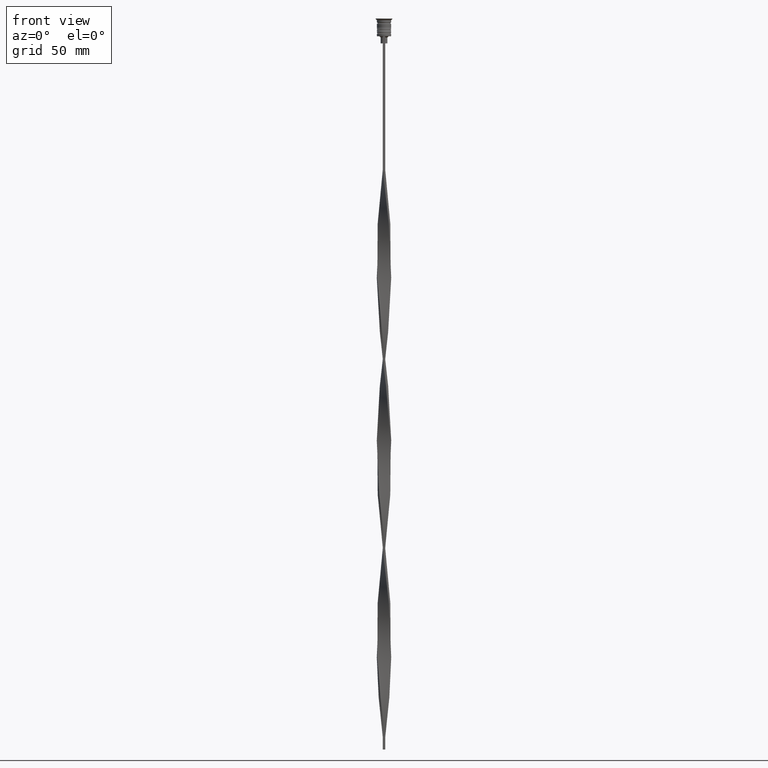
[diagram: clean part render]
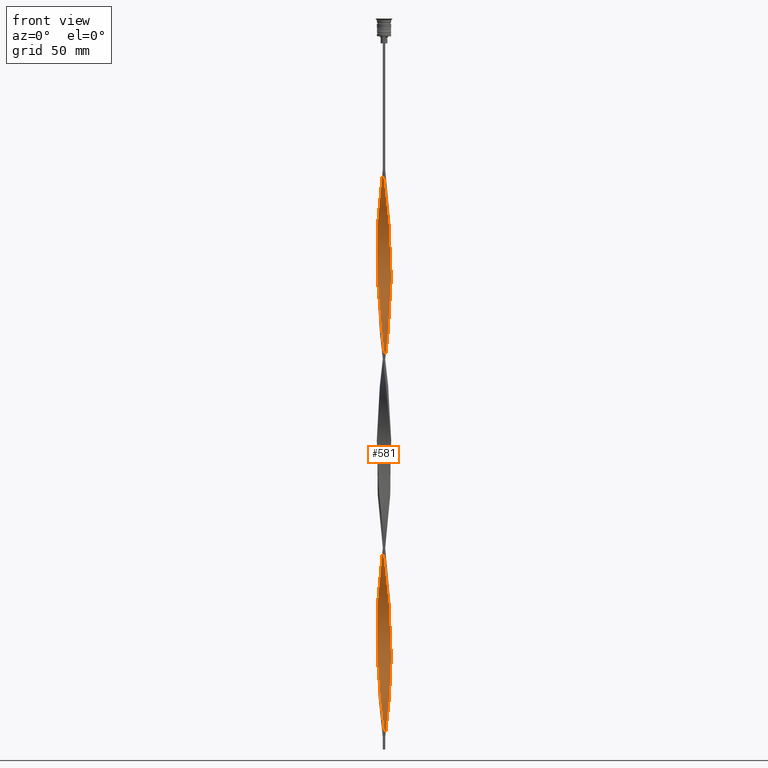
[diagram: same view with one face highlighted and labeled with its STEP entity id]
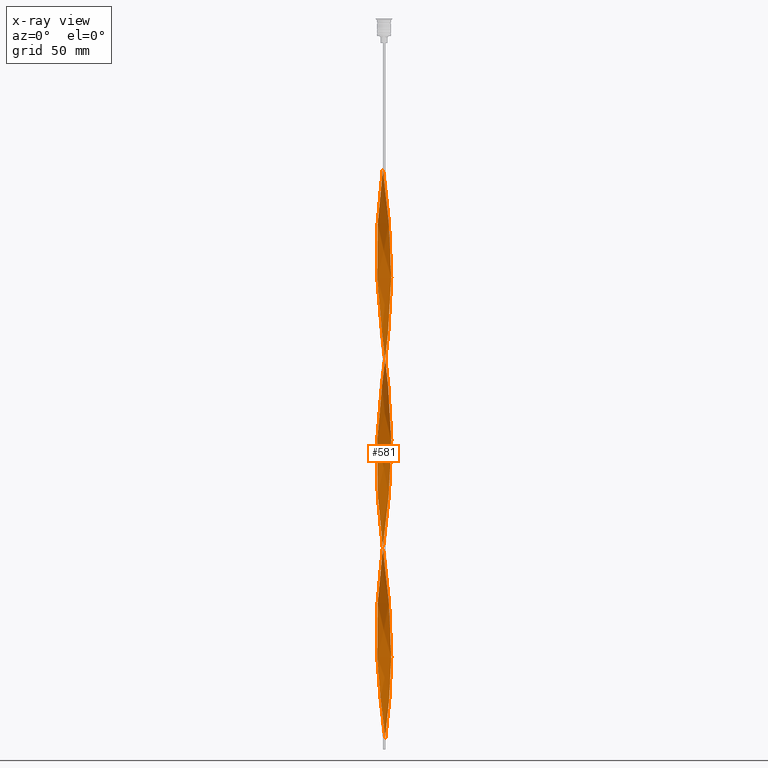
[diagram: x-ray of the same camera — body ghosted, the highlighted face saturated]
A machine part, front view. The second image highlights one B-rep face of the part: STEP entity #581.
The next image is the same camera in x-ray: the body ghosted, the highlighted face saturated — about 0% of this face is hidden behind the body in this view.
In plain terms, the highlighted face is a freeform B-spline surface patch.
Its self-contained STEP definition (entity closure, byte-faithful):
#22 = CARTESIAN_POINT ( 'NONE',  ( -2.588275671453068139, 1.614968472182172432, -173.0416666666666856 ) ) ;
#25 = CARTESIAN_POINT ( 'NONE',  ( -1.962543740019620175, -2.335747457686308426, -280.5916666666666401 ) ) ;
#42 = CARTESIAN_POINT ( 'NONE',  ( -2.972142436947120991, -0.6882321207821395781, -192.9583333333333428 ) ) ;
#45 = CARTESIAN_POINT ( 'NONE',  ( -3.041282254305528454, -0.02454077517687622625, -258.6833333333333940 ) ) ;
#51 = CARTESIAN_POINT ( 'NONE',  ( -1.572990165913118021, -2.614000010619525138, -125.2416666666667027 ) ) ;
#59 = CARTESIAN_POINT ( 'NONE',  ( -1.144704353466773128, 2.827887207922633817, -157.1083333333334053 ) ) ;
#64 = CARTESIAN_POINT ( 'NONE',  ( -1.190190010362667472, 2.809046431942904931, -69.47499999999999432 ) ) ;
#70 = CARTESIAN_POINT ( 'NONE',  ( -2.614000010619525138, 1.572990165913118021, -85.40833333333333144 ) ) ;
#84 = CARTESIAN_POINT ( 'NONE',  ( -2.900014822434877626, -0.9164682371244557979, -194.9500000000000171 ) ) ;
#92 = CARTESIAN_POINT ( 'NONE',  ( 0.9631475654182611867, -2.884847789265297724, -147.1500000000000057 ) ) ;
#97 = CARTESIAN_POINT ( 'NONE',  ( 2.809046431942904931, -1.190190010362667916, -97.35833333333334849 ) ) ;
#102 = CARTESIAN_POINT ( 'NONE',  ( -2.809046431942904931, 1.190190010362667028, -177.0250000000000341 ) ) ;
#110 = CARTESIAN_POINT ( 'NONE',  ( -2.167864254064893359, 2.133158356978606118, -79.43333333333332291 ) ) ;
#116 = CARTESIAN_POINT ( 'NONE',  ( -2.698661051697986757, 1.402579241272419619, -175.0333333333333599 ) ) ;
#124 = CARTESIAN_POINT ( 'NONE',  ( -2.446024322695330433, -1.807474761312824363, -115.2833333333333314 ) ) ;
#129 = VECTOR ( 'NONE', #441, 1000.000000000000000 ) ;
#136 = CARTESIAN_POINT ( 'NONE',  ( -2.972142436947120991, -0.6882321207821395781, -192.9583333333333428 ) ) ;
#143 = EDGE_LOOP ( 'NONE', ( #876, #1626, #1154, #186 ) ) ;
#145 = CARTESIAN_POINT ( 'NONE',  ( 3.043213655198747869, -0.2148133291723912652, -177.0250000000000341 ) ) ;
#147 = CARTESIAN_POINT ( 'NONE',  ( -0.6882321207821390230, -2.972142436947121436, -133.2083333333333144 ) ) ;
#158 = CARTESIAN_POINT ( 'NONE',  ( 2.972142436947121436, 0.6882321207821385789, -113.2916666666666998 ) ) ;
#164 = CARTESIAN_POINT ( 'NONE',  ( -0.7361051204738553455, 2.960649146587690517, -224.8250000000000171 ) ) ;
#167 = CARTESIAN_POINT ( 'NONE',  ( 3.007678046072934208, -0.4515227249772658102, -175.0333333333333599 ) ) ;
#178 = CARTESIAN_POINT ( 'NONE',  ( -2.588275671453068139, 1.614968472182172210, -173.0416666666666856 ) ) ;
#185 = CARTESIAN_POINT ( 'NONE',  ( -2.167864254064893359, 2.133158356978606118, -238.7666666666666799 ) ) ;
#186 = ORIENTED_EDGE ( 'NONE', *, *, #3258, .F. ) ;
#200 = CARTESIAN_POINT ( 'NONE',  ( 3.007678046072934652, 0.4515227249772650886, -270.6333333333333258 ) ) ;
#208 = CARTESIAN_POINT ( 'NONE',  ( -1.807474761312824363, 2.446024322695330433, -234.7833333333333314 ) ) ;
#211 = CARTESIAN_POINT ( 'NONE',  ( -2.900014822434876738, 0.9164682371244563530, -250.7166666666666970 ) ) ;
#221 = CARTESIAN_POINT ( 'NONE',  ( 2.972142436947121436, 0.6882321207821385789, -272.6250000000000568 ) ) ;
#228 = CARTESIAN_POINT ( 'NONE',  ( 2.446024322695330877, 1.807474761312824141, -194.9500000000000171 ) ) ;
#238 = CARTESIAN_POINT ( 'NONE',  ( -1.807474761312824807, -2.446024322695329989, -210.8833333333333258 ) ) ;
#244 = FACE_OUTER_BOUND ( 'NONE', #143, .T. ) ;
#245 = CARTESIAN_POINT ( 'NONE',  ( -2.960649146587690961, -0.7361051204738553455, -264.6583333333333030 ) ) ;
#265 = CARTESIAN_POINT ( 'NONE',  ( 2.335747457686308870, 1.962543740019620175, -125.2416666666667027 ) ) ;
#278 = CARTESIAN_POINT ( 'NONE',  ( 0.4515227249772652551, -3.007678046072934208, -230.8000000000000114 ) ) ;
#283 = CARTESIAN_POINT ( 'NONE',  ( 1.999981050443478958, 2.303772973937591395, -129.2250000000000512 ) ) ;
#285 = CARTESIAN_POINT ( 'NONE',  ( -1.999981050443478514, 2.303772973937591839, -236.7750000000000341 ) ) ;
#293 = EDGE_CURVE ( 'NONE', #1572, #3271, #3181, .T. ) ;
#294 = CARTESIAN_POINT ( 'NONE',  ( 0.4999999999999997780, -3.000000000000000000, -302.5000000000000000 ) ) ;
#316 = CARTESIAN_POINT ( 'NONE',  ( -3.000000000000000000, 0.5000000000000006661, -183.0000000000000000 ) ) ;
#321 = CARTESIAN_POINT ( 'NONE',  ( -2.446024322695330433, -1.807474761312824363, -274.6166666666666742 ) ) ;
#338 = CARTESIAN_POINT ( 'NONE',  ( -0.9631475654182622970, -2.884847789265297280, -218.8500000000000227 ) ) ;
#346 = CARTESIAN_POINT ( 'NONE',  ( 2.720943609271079033, -1.358847259689946130, -167.0666666666666629 ) ) ;
#351 = CARTESIAN_POINT ( 'NONE',  ( -0.2148133291723924865, -3.043213655198747869, -296.5250000000000341 ) ) ;
#355 = CARTESIAN_POINT ( 'NONE',  ( -0.9164682371244557979, 2.900014822434877182, -155.1166666666666742 ) ) ;
#363 = CARTESIAN_POINT ( 'NONE',  ( -1.358847259689946130, -2.720943609271079033, -127.2333333333333343 ) ) ;
#371 = CARTESIAN_POINT ( 'NONE',  ( -3.039350853412309039, 0.2638948795261439328, -184.9916666666666742 ) ) ;
#378 = CARTESIAN_POINT ( 'NONE',  ( 2.335747457686308426, -1.962543740019620842, -161.0916666666666970 ) ) ;
#383 = CARTESIAN_POINT ( 'NONE',  ( -2.698661051697987201, -1.402579241272419175, -111.3000000000000114 ) ) ;
#390 = CARTESIAN_POINT ( 'NONE',  ( 1.572990165913117799, -2.614000010619525138, -81.42500000000001137 ) ) ;
#397 = CARTESIAN_POINT ( 'NONE',  ( -1.767766952966369098, -2.474873734152916338, -123.2500000000000000 ) ) ;
#400 = CARTESIAN_POINT ( 'NONE',  ( 2.167864254064893359, 2.133158356978605230, -286.5666666666667197 ) ) ;
#406 = CARTESIAN_POINT ( 'NONE',  ( -1.999981050443478070, -2.303772973937591395, -208.8916666666667084 ) ) ;
#413 = CARTESIAN_POINT ( 'NONE',  ( -0.7361051204738554565, 2.960649146587690961, -65.49166666666667425 ) ) ;
#415 = CARTESIAN_POINT ( 'NONE',  ( -3.007678046072934208, 0.4515227249772654772, -95.36666666666667425 ) ) ;
#422 = CARTESIAN_POINT ( 'NONE',  ( -1.572990165913117355, 2.614000010619525582, -161.0916666666666970 ) ) ;
#430 = CARTESIAN_POINT ( 'NONE',  ( 1.358847259689946352, 2.720943609271079033, -206.9000000000000057 ) ) ;
#433 = CARTESIAN_POINT ( 'NONE',  ( -2.614000010619525138, 1.572990165913117799, -85.40833333333333144 ) ) ;
#441 = DIRECTION ( 'NONE',  ( 0.000000000000000000, 1.000000000000000000, 0.000000000000000000 ) ) ;
#448 = CARTESIAN_POINT ( 'NONE',  ( 1.614968472182171322, 2.588275671453069027, -133.2083333333333144 ) ) ;
#457 = CARTESIAN_POINT ( 'NONE',  ( -2.884847789265297724, -0.9631475654182615198, -107.3166666666666771 ) ) ;
#467 = CARTESIAN_POINT ( 'NONE',  ( 1.190190010362667916, 2.809046431942904931, -137.1916666666666913 ) ) ;
#473 = CARTESIAN_POINT ( 'NONE',  ( 3.039350853412309483, 0.2638948795261428781, -181.0083333333333258 ) ) ;
#476 = CARTESIAN_POINT ( 'NONE',  ( 0.9164682371244567971, 2.900014822434876738, -210.8833333333333258 ) ) ;
#485 = CARTESIAN_POINT ( 'NONE',  ( -3.000000000000000000, 0.5000000000000006661, -183.0000000000000000 ) ) ;
#490 = CARTESIAN_POINT ( 'NONE',  ( 3.000000000000000000, 0.4999999999999995559, -183.0000000000000000 ) ) ;
#495 = CARTESIAN_POINT ( 'NONE',  ( 2.809046431942905375, 1.190190010362665918, -188.9750000000000227 ) ) ;
#508 = CARTESIAN_POINT ( 'NONE',  ( 1.144704353466773794, -2.827887207922633817, -236.7750000000000341 ) ) ;
#519 = CARTESIAN_POINT ( 'NONE',  ( 0.4515227249772652551, -3.007678046072934208, -71.46666666666666856 ) ) ;
#522 = CARTESIAN_POINT ( 'NONE',  ( -2.698661051697987201, -1.402579241272419175, -270.6333333333333258 ) ) ;
#531 = CARTESIAN_POINT ( 'NONE',  ( 0.6882321207821388009, -2.972142436947121436, -232.7916666666666856 ) ) ;
#536 = CARTESIAN_POINT ( 'NONE',  ( 2.960649146587690517, -0.7361051204738555676, -101.3416666666666686 ) ) ;
#538 = CARTESIAN_POINT ( 'NONE',  ( -2.720943609271079033, 1.358847259689945686, -246.7333333333333201 ) ) ;
#547 = CARTESIAN_POINT ( 'NONE',  ( 2.167864254064893359, 2.133158356978605230, -286.5666666666667197 ) ) ;
#555 = CARTESIAN_POINT ( 'NONE',  ( -3.039350853412309483, -0.2638948795261445990, -260.6750000000000682 ) ) ;
#557 = CARTESIAN_POINT ( 'NONE',  ( 0.2638948795261443769, -3.039350853412309039, -300.5083333333334394 ) ) ;
#577 = CARTESIAN_POINT ( 'NONE',  ( 2.698661051697986757, -1.402579241272419397, -95.36666666666667425 ) ) ;
#581 = ADVANCED_FACE ( 'NONE', ( #244 ), #838, .T. ) ;
#597 = CARTESIAN_POINT ( 'NONE',  ( 1.767766952966369098, -2.474873734152916782, -83.41666666666667140 ) ) ;
#602 = CARTESIAN_POINT ( 'NONE',  ( -3.039350853412309039, -0.2638948795261445990, -260.6750000000000682 ) ) ;
#617 = CARTESIAN_POINT ( 'NONE',  ( 3.041282254305528454, -0.02454077517687655238, -266.6499999999999773 ) ) ;
#620 = CARTESIAN_POINT ( 'NONE',  ( -2.167864254064893359, 2.133158356978606118, -238.7666666666666799 ) ) ;
#638 = CARTESIAN_POINT ( 'NONE',  ( -2.614000010619524250, -1.572990165913118465, -200.9250000000000682 ) ) ;
#650 = CARTESIAN_POINT ( 'NONE',  ( -0.9164682371244565751, -2.900014822434876738, -131.2166666666666686 ) ) ;
#660 = CARTESIAN_POINT ( 'NONE',  ( -2.446024322695329989, 1.807474761312824807, -171.0500000000000114 ) ) ;
#669 = CARTESIAN_POINT ( 'NONE',  ( -2.133158356978606118, -2.167864254064892915, -119.2666666666666799 ) ) ;
#678 = CARTESIAN_POINT ( 'NONE',  ( 2.698661051697986757, -1.402579241272419397, -254.7000000000000455 ) ) ;
#681 = CARTESIAN_POINT ( 'NONE',  ( -3.000000000000000000, -0.4999999999999998890, -103.3333333333333286 ) ) ;
#684 = CARTESIAN_POINT ( 'NONE',  ( -2.960649146587690517, -0.7361051204738552345, -105.3249999999999886 ) ) ;
#689 = CARTESIAN_POINT ( 'NONE',  ( 0.9164682371244560199, -2.900014822434877182, -75.45000000000000284 ) ) ;
#692 = CARTESIAN_POINT ( 'NONE',  ( -2.474873734152917226, -1.767766952966368210, -202.9166666666666572 ) ) ;
#701 = CARTESIAN_POINT ( 'NONE',  ( -1.402579241272419175, 2.698661051697986757, -71.46666666666666856 ) ) ;
#708 = CARTESIAN_POINT ( 'NONE',  ( 2.474873734152916338, -1.767766952966369542, -163.0833333333333712 ) ) ;
#716 = CARTESIAN_POINT ( 'NONE',  ( -3.043213655198748313, -0.2148133291723901273, -188.9750000000000227 ) ) ;
#725 = CARTESIAN_POINT ( 'NONE',  ( -0.2148133291723924865, -3.043213655198747869, -137.1916666666666913 ) ) ;
#729 = CARTESIAN_POINT ( 'NONE',  ( -0.9631475654182616308, 2.884847789265297724, -67.48333333333333428 ) ) ;
#737 = CARTESIAN_POINT ( 'NONE',  ( 2.698661051697986757, -1.402579241272419397, -95.36666666666667425 ) ) ;
#743 = CARTESIAN_POINT ( 'NONE',  ( 2.960649146587690517, 0.7361051204738562337, -184.9916666666666742 ) ) ;
#745 = CARTESIAN_POINT ( 'NONE',  ( 0.2638948795261443769, -3.039350853412309483, -141.1749999999999829 ) ) ;
#754 = CARTESIAN_POINT ( 'NONE',  ( 1.807474761312824807, 2.446024322695329989, -131.2166666666666686 ) ) ;
#761 = CARTESIAN_POINT ( 'NONE',  ( -0.02454077517687562951, 3.041282254305528010, -218.8500000000000227 ) ) ;
#762 = CARTESIAN_POINT ( 'NONE',  ( 1.807474761312824141, -2.446024322695330433, -155.1166666666666742 ) ) ;
#775 = CARTESIAN_POINT ( 'NONE',  ( -1.767766952966368654, 2.474873734152917226, -163.0833333333333712 ) ) ;
#785 = CARTESIAN_POINT ( 'NONE',  ( 2.720943609271079033, -1.358847259689946130, -167.0666666666666629 ) ) ;
#795 = CARTESIAN_POINT ( 'NONE',  ( 0.9631475654182618529, 2.884847789265297280, -139.1833333333333371 ) ) ;
#801 = CARTESIAN_POINT ( 'NONE',  ( 2.900014822434876738, -0.9164682371244567971, -171.0500000000000114 ) ) ;
#812 = CARTESIAN_POINT ( 'NONE',  ( -0.9631475654182622970, -2.884847789265297280, -218.8500000000000227 ) ) ;
#818 = CARTESIAN_POINT ( 'NONE',  ( 2.972142436947120547, -0.6882321207821405773, -173.0416666666666856 ) ) ;
#838 =( BOUNDED_SURFACE ( )  B_SPLINE_SURFACE ( 1, 2, ( 
 ( #3551, #1516, #1438, #3312, #519, #2957, #1744, #1454, #3889, #3948, #597, #2975, #2061, #3597, #2658, #3871, #577, #2353, #3574, #536, #2674, #1804, #3018, #1779, #1762, #3910, #860, #3929, #2077, #2992, #2420, #265, #1478, #283, #1182, #2399, #3616, #1198, #3635, #897, #2119, #1819, #3431, #3352, #1597, #1283, #355, #59, #3114, #2813, #1620, #1247, #2774, #2183, #660, #22, #2219, #102, #2521, #3679, #316, #371, #3413, #2503, #1839, #42, #84, #2445, #1306, #638, #692, #3371, #1865, #3739, #1885, #2758, #1541, #1902, #338, #1267, #3098, #3723, #998, #1578, #1921, #2201, #1560, #956, #3396, #3081, #937, #3133, #2483, #3660, #2792, #3699, #678, #981, #2832, #919, #2136, #2158, #617, #3055, #2464, #3756, #1323, #2539, #1016, #2238, #3456, #1629, #400, #1586, #947, #1935, #1274, #3442, #2547, #1893, #2783 ),
 ( #1650, #3142, #729, #2491, #1610, #3765, #2839, #3122, #110, #969, #2857, #70, #1952, #3689, #1570, #2209, #415, #3729, #2169, #2191, #3384, #684, #990, #3405, #383, #2801, #2474, #2822, #669, #1258, #3161, #51, #363, #1331, #650, #3106, #1295, #2510, #3465, #3422, #1909, #1313, #92, #1877, #2528, #3746, #1007, #3089, #1032, #2227, #708, #2252, #346, #1201, #3372, #1396, #3476, #145, #3215, #473, #490, #743, #1684, #1963, #1717, #3153, #1421, #1644, #2641, #2561, #1700, #3173, #430, #2877, #2579, #2280, #3854, #2934, #761, #1981, #3198, #164, #2598, #3840, #3814, #1082, #208, #285, #620, #1842, #3337, #3913, #1520, #2718, #1545, #2423, #2382, #1249, #45, #602, #2140, #2081, #1186, #1869, #2698, #2737, #321, #3643, #2761, #25, #939, #3932, #2403, #3619, #880, #2161, #3600, #863, #1783, #557, #3000 ) ),
 .UNSPECIFIED., .F., .F., .F. ) 
 B_SPLINE_SURFACE_WITH_KNOTS ( ( 2, 2 ),
 ( 3, 2, 2, 2, 2, 2, 2, 2, 2, 2, 2, 2, 2, 2, 2, 2, 2, 2, 2, 2, 2, 2, 2, 2, 2, 2, 2, 2, 2, 2, 2, 2, 2, 2, 2, 2, 2, 2, 2, 2, 2, 2, 2, 2, 2, 2, 2, 2, 2, 2, 2, 2, 2, 2, 2, 2, 2, 2, 2, 2, 3 ),
 ( 0.000000000000000000, 1.000000000000000000 ),
 ( 0.000000000000000000, 0.01250000000000000069, 0.02500000000000000139, 0.03749999999999999861, 0.05000000000000000278, 0.06250000000000000000, 0.07499999999999999722, 0.08749999999999999445, 0.1000000000000000056, 0.1125000000000000028, 0.1250000000000000000, 0.1375000000000000111, 0.1499999999999999944, 0.1625000000000000056, 0.1749999999999999889, 0.1875000000000000000, 0.2000000000000000111, 0.2124999999999999944, 0.2250000000000000056, 0.2374999999999999889, 0.2500000000000000000, 0.2625000000000000111, 0.2750000000000000222, 0.2874999999999999778, 0.2999999999999999889, 0.3125000000000000000, 0.3250000000000000111, 0.3375000000000000222, 0.3499999999999999778, 0.3624999999999999889, 0.3750000000000000000, 0.3875000000000000111, 0.4000000000000000222, 0.4124999999999999778, 0.4249999999999999889, 0.4375000000000000000, 0.4500000000000000111, 0.4625000000000000222, 0.4749999999999999778, 0.4874999999999999889, 0.5000000000000000000, 0.5124999999999999556, 0.5250000000000000222, 0.5374999999999999778, 0.5500000000000000444, 0.5625000000000000000, 0.5749999999999999556, 0.5875000000000000222, 0.5999999999999999778, 0.6125000000000000444, 0.6250000000000000000, 0.6374999999999999556, 0.6500000000000000222, 0.6624999999999999778, 0.6750000000000000444, 0.6875000000000000000, 0.6999999999999999556, 0.7125000000000000222, 0.7249999999999999778, 0.7375000000000000444, 0.7500000000000000000 ),
 .UNSPECIFIED. ) 
 GEOMETRIC_REPRESENTATION_ITEM ( )  RATIONAL_B_SPLINE_SURFACE ( (
 ( 1.000000000000000000, 0.9969173337331279638, 1.000000000000000000, 0.9969173337331279638, 1.000000000000000000, 0.9969173337331279638, 1.000000000000000000, 0.9969173337331279638, 1.000000000000000000, 0.9969173337331279638, 1.000000000000000000, 0.9969173337331279638, 1.000000000000000000, 0.9969173337331279638, 1.000000000000000000, 0.9969173337331279638, 1.000000000000000000, 0.9969173337331279638, 1.000000000000000000, 0.9969173337331279638, 1.000000000000000000, 0.9969173337331279638, 1.000000000000000000, 0.9969173337331279638, 1.000000000000000000, 0.9969173337331279638, 1.000000000000000000, 0.9969173337331279638, 1.000000000000000000, 0.9969173337331279638, 1.000000000000000000, 0.9969173337331279638, 1.000000000000000000, 0.9969173337331279638, 1.000000000000000000, 0.9969173337331279638, 1.000000000000000000, 0.9969173337331279638, 1.000000000000000000, 0.9969173337331279638, 1.000000000000000000, 0.9969173337331279638, 1.000000000000000000, 0.9969173337331279638, 1.000000000000000000, 0.9969173337331279638, 1.000000000000000000, 0.9969173337331279638, 1.000000000000000000, 0.9969173337331279638, 1.000000000000000000, 0.9969173337331279638, 1.000000000000000000, 0.9969173337331279638, 1.000000000000000000, 0.9969173337331279638, 1.000000000000000000, 0.9969173337331279638, 1.000000000000000000, 0.9969173337331279638, 1.000000000000000000, 0.9969173337331279638, 1.000000000000000000, 0.9969173337331279638, 1.000000000000000000, 0.9969173337331279638, 1.000000000000000000, 0.9969173337331279638, 1.000000000000000000, 0.9969173337331279638, 1.000000000000000000, 0.9969173337331279638, 1.000000000000000000, 0.9969173337331279638, 1.000000000000000000, 0.9969173337331279638, 1.000000000000000000, 0.9969173337331279638, 1.000000000000000000, 0.9969173337331279638, 1.000000000000000000, 0.9969173337331279638, 1.000000000000000000, 0.9969173337331279638, 1.000000000000000000, 0.9969173337331279638, 1.000000000000000000, 0.9969173337331279638, 1.000000000000000000, 0.9969173337331279638, 1.000000000000000000, 0.9969173337331279638, 1.000000000000000000, 0.9969173337331279638, 1.000000000000000000, 0.9969173337331279638, 1.000000000000000000, 0.9969173337331279638, 1.000000000000000000, 0.9969173337331279638, 1.000000000000000000, 0.9969173337331279638, 1.000000000000000000, 0.9969173337331279638, 1.000000000000000000, 0.9969173337331279638, 1.000000000000000000, 0.9969173337331279638, 1.000000000000000000, 0.9969173337331279638, 1.000000000000000000, 0.9969173337331279638, 1.000000000000000000, 0.9969173337331279638, 1.000000000000000000, 0.9969173337331279638, 1.000000000000000000, 0.9969173337331279638, 1.000000000000000000, 0.9969173337331279638, 1.000000000000000000),
 ( 1.000000000000000000, 0.9969173337331279638, 1.000000000000000000, 0.9969173337331279638, 1.000000000000000000, 0.9969173337331279638, 1.000000000000000000, 0.9969173337331279638, 1.000000000000000000, 0.9969173337331279638, 1.000000000000000000, 0.9969173337331279638, 1.000000000000000000, 0.9969173337331279638, 1.000000000000000000, 0.9969173337331279638, 1.000000000000000000, 0.9969173337331279638, 1.000000000000000000, 0.9969173337331279638, 1.000000000000000000, 0.9969173337331279638, 1.000000000000000000, 0.9969173337331279638, 1.000000000000000000, 0.9969173337331279638, 1.000000000000000000, 0.9969173337331279638, 1.000000000000000000, 0.9969173337331279638, 1.000000000000000000, 0.9969173337331279638, 1.000000000000000000, 0.9969173337331279638, 1.000000000000000000, 0.9969173337331279638, 1.000000000000000000, 0.9969173337331279638, 1.000000000000000000, 0.9969173337331279638, 1.000000000000000000, 0.9969173337331279638, 1.000000000000000000, 0.9969173337331279638, 1.000000000000000000, 0.9969173337331279638, 1.000000000000000000, 0.9969173337331279638, 1.000000000000000000, 0.9969173337331279638, 1.000000000000000000, 0.9969173337331279638, 1.000000000000000000, 0.9969173337331279638, 1.000000000000000000, 0.9969173337331279638, 1.000000000000000000, 0.9969173337331279638, 1.000000000000000000, 0.9969173337331279638, 1.000000000000000000, 0.9969173337331279638, 1.000000000000000000, 0.9969173337331279638, 1.000000000000000000, 0.9969173337331279638, 1.000000000000000000, 0.9969173337331279638, 1.000000000000000000, 0.9969173337331279638, 1.000000000000000000, 0.9969173337331279638, 1.000000000000000000, 0.9969173337331279638, 1.000000000000000000, 0.9969173337331279638, 1.000000000000000000, 0.9969173337331279638, 1.000000000000000000, 0.9969173337331279638, 1.000000000000000000, 0.9969173337331279638, 1.000000000000000000, 0.9969173337331279638, 1.000000000000000000, 0.9969173337331279638, 1.000000000000000000, 0.9969173337331279638, 1.000000000000000000, 0.9969173337331279638, 1.000000000000000000, 0.9969173337331279638, 1.000000000000000000, 0.9969173337331279638, 1.000000000000000000, 0.9969173337331279638, 1.000000000000000000, 0.9969173337331279638, 1.000000000000000000, 0.9969173337331279638, 1.000000000000000000, 0.9969173337331279638, 1.000000000000000000, 0.9969173337331279638, 1.000000000000000000, 0.9969173337331279638, 1.000000000000000000, 0.9969173337331279638, 1.000000000000000000, 0.9969173337331279638, 1.000000000000000000, 0.9969173337331279638, 1.000000000000000000, 0.9969173337331279638, 1.000000000000000000, 0.9969173337331279638, 1.000000000000000000, 0.9969173337331279638, 1.000000000000000000, 0.9969173337331279638, 1.000000000000000000) ) ) 
 REPRESENTATION_ITEM ( '' )  SURFACE ( )  );
#843 = CARTESIAN_POINT ( 'NONE',  ( -2.614000010619525138, 1.572990165913117799, -244.7416666666667027 ) ) ;
#853 = CARTESIAN_POINT ( 'NONE',  ( 2.698661051697986757, -1.402579241272419397, -254.7000000000000455 ) ) ;
#859 = CARTESIAN_POINT ( 'NONE',  ( 0.5000000000000004441, 3.000000000000000000, -302.5000000000000000 ) ) ;
#860 = CARTESIAN_POINT ( 'NONE',  ( 2.900014822434877182, 0.9164682371244560199, -115.2833333333333314 ) ) ;
#861 = CARTESIAN_POINT ( 'NONE',  ( -2.335747457686308870, 1.962543740019620397, -240.7583333333333826 ) ) ;
#863 = CARTESIAN_POINT ( 'NONE',  ( -0.2148133291723924587, -3.043213655198747869, -296.5250000000000341 ) ) ;
#872 = CARTESIAN_POINT ( 'NONE',  ( 1.999981050443478958, 2.303772973937590951, -288.5583333333333940 ) ) ;
#876 = ORIENTED_EDGE ( 'NONE', *, *, #293, .T. ) ;
#880 = CARTESIAN_POINT ( 'NONE',  ( -0.9164682371244565751, -2.900014822434876738, -290.5499999999999545 ) ) ;
#888 = CARTESIAN_POINT ( 'NONE',  ( 2.827887207922633817, 1.144704353466773794, -276.6083333333333485 ) ) ;
#897 = CARTESIAN_POINT ( 'NONE',  ( 0.7361051204738557896, 2.960649146587690517, -141.1749999999999829 ) ) ;
#919 = CARTESIAN_POINT ( 'NONE',  ( 2.960649146587690517, -0.7361051204738555676, -260.6750000000000682 ) ) ;
#937 = CARTESIAN_POINT ( 'NONE',  ( 1.767766952966369098, -2.474873734152916782, -242.7500000000000284 ) ) ;
#939 = CARTESIAN_POINT ( 'NONE',  ( -1.767766952966369098, -2.474873734152916338, -282.5833333333333712 ) ) ;
#947 = CARTESIAN_POINT ( 'NONE',  ( 1.807474761312824807, 2.446024322695329989, -290.5499999999999545 ) ) ;
#956 = CARTESIAN_POINT ( 'NONE',  ( 1.144704353466773572, -2.827887207922633817, -236.7750000000000341 ) ) ;
#969 = CARTESIAN_POINT ( 'NONE',  ( -2.335747457686308870, 1.962543740019620175, -81.42500000000002558 ) ) ;
#975 = CARTESIAN_POINT ( 'NONE',  ( 0.4515227249772652551, -3.007678046072934208, -71.46666666666666856 ) ) ;
#981 = CARTESIAN_POINT ( 'NONE',  ( 2.809046431942904931, -1.190190010362667916, -256.6916666666666629 ) ) ;
#990 = CARTESIAN_POINT ( 'NONE',  ( -2.884847789265297724, -0.9631475654182615198, -107.3166666666666771 ) ) ;
#998 = CARTESIAN_POINT ( 'NONE',  ( -0.02454077517687638932, -3.041282254305528454, -226.8166666666666629 ) ) ;
#1004 = CARTESIAN_POINT ( 'NONE',  ( -3.039350853412309483, -0.2638948795261445990, -101.3416666666666828 ) ) ;
#1007 = CARTESIAN_POINT ( 'NONE',  ( 1.807474761312824141, -2.446024322695330433, -155.1166666666666742 ) ) ;
#1012 = CARTESIAN_POINT ( 'NONE',  ( 3.039350853412309483, -0.2638948795261449320, -105.3250000000000028 ) ) ;
#1013 = CARTESIAN_POINT ( 'NONE',  ( -0.4515227249772655882, -3.007678046072934208, -294.5333333333333030 ) ) ;
#1016 = CARTESIAN_POINT ( 'NONE',  ( 2.720943609271079033, 1.358847259689945242, -278.6000000000000227 ) ) ;
#1032 = CARTESIAN_POINT ( 'NONE',  ( 2.167864254064892915, -2.133158356978606118, -159.1000000000000227 ) ) ;
#1041 = CARTESIAN_POINT ( 'NONE',  ( -0.6882321207821383569, 2.972142436947121880, -153.1250000000000000 ) ) ;
#1051 = CARTESIAN_POINT ( 'NONE',  ( 0.4999999999999997780, -3.000000000000000000, -143.1666666666666572 ) ) ;
#1059 = CARTESIAN_POINT ( 'NONE',  ( -1.358847259689945242, 2.720943609271079033, -159.1000000000000227 ) ) ;
#1067 = CARTESIAN_POINT ( 'NONE',  ( -2.133158356978606118, -2.167864254064892915, -119.2666666666666799 ) ) ;
#1077 = CARTESIAN_POINT ( 'NONE',  ( -2.720943609271079477, -1.358847259689944798, -198.9333333333333371 ) ) ;
#1082 = CARTESIAN_POINT ( 'NONE',  ( -1.614968472182171100, 2.588275671453069027, -232.7916666666666572 ) ) ;
#1084 = CARTESIAN_POINT ( 'NONE',  ( -0.9631475654182616308, 2.884847789265297724, -226.8166666666666629 ) ) ;
#1100 = CARTESIAN_POINT ( 'NONE',  ( 3.043213655198747869, 0.2148133291723917371, -109.3083333333333371 ) ) ;
#1107 = CARTESIAN_POINT ( 'NONE',  ( -3.043213655198747869, 0.2148133291723922644, -256.6916666666666629 ) ) ;
#1117 = CARTESIAN_POINT ( 'NONE',  ( 2.133158356978606118, -2.167864254064893359, -246.7333333333333201 ) ) ;
#1123 = CARTESIAN_POINT ( 'NONE',  ( -1.767766952966369098, -2.474873734152916338, -282.5833333333333712 ) ) ;
#1133 = CARTESIAN_POINT ( 'NONE',  ( 0.7361051204738559006, 2.960649146587690961, -300.5083333333334394 ) ) ;
#1140 = CARTESIAN_POINT ( 'NONE',  ( 1.572990165913119354, 2.614000010619523806, -204.9083333333333599 ) ) ;
#1153 = CARTESIAN_POINT ( 'NONE',  ( -0.2638948795261447655, -3.039350853412309483, -224.8250000000000171 ) ) ;
#1154 = ORIENTED_EDGE ( 'NONE', *, *, #3143, .F. ) ;
#1165 = CARTESIAN_POINT ( 'NONE',  ( -2.446024322695330433, -1.807474761312824363, -274.6166666666666742 ) ) ;
#1182 = CARTESIAN_POINT ( 'NONE',  ( 1.807474761312824807, 2.446024322695329989, -131.2166666666666686 ) ) ;
#1186 = CARTESIAN_POINT ( 'NONE',  ( -2.884847789265297724, -0.9631475654182615198, -266.6499999999999773 ) ) ;
#1193 = CARTESIAN_POINT ( 'NONE',  ( 3.000000000000000000, -0.5000000000000003331, -262.6666666666667425 ) ) ;
#1198 = CARTESIAN_POINT ( 'NONE',  ( 1.190190010362667916, 2.809046431942904931, -137.1916666666666913 ) ) ;
#1201 = CARTESIAN_POINT ( 'NONE',  ( 2.827887207922633372, -1.144704353466772906, -169.0583333333333655 ) ) ;
#1247 = CARTESIAN_POINT ( 'NONE',  ( -1.962543740019619731, 2.335747457686310202, -165.0749999999999886 ) ) ;
#1249 = CARTESIAN_POINT ( 'NONE',  ( -3.043213655198747869, 0.2148133291723922367, -256.6916666666666629 ) ) ;
#1257 =( BOUNDED_CURVE ( )  B_SPLINE_CURVE ( 2, ( #1302, #3053, #2498, #2215, #975, #3110, #689, #1915, #3128, #390, #2865, #3829, #3752, #2291, #1338, #1391, #737, #97, #2257, #3809, #1636, #1012, #1997, #1100, #1678, #158, #2313, #1975, #2573, #1957, #3529, #2231, #3210, #2890, #754, #448, #3506, #467, #795, #2845, #3166, #1359, #2014, #1695, #1375, #1041, #2908, #3772, #1059, #422, #775, #2593, #3227, #2552, #1656, #178, #116, #3791, #3470, #2613, #485, #2274, #3148, #716, #2829, #136, #3186, #1318, #1077, #3488, #2534, #3450, #1940, #406, #238, #3590, #3266, #3243, #812, #2072, #3285, #1153, #3610, #2090, #278, #531, #2031, #508, #1737, #1492, #3329, #2927, #1117, #3850, #2332, #3883, #853, #3547, #2952, #1450, #1193, #1712, #1756, #2412, #200, #221, #2669, #888, #2373, #2636, #1432, #2652, #547, #872, #3867, #1794, #1774, #1415, #2987, #1133, #2349 ),
 .UNSPECIFIED., .F., .T. ) 
 B_SPLINE_CURVE_WITH_KNOTS ( ( 3, 2, 2, 2, 2, 2, 2, 2, 2, 2, 2, 2, 2, 2, 2, 2, 2, 2, 2, 2, 2, 2, 2, 2, 2, 2, 2, 2, 2, 2, 2, 2, 2, 2, 2, 2, 2, 2, 2, 2, 2, 2, 2, 2, 2, 2, 2, 2, 2, 2, 2, 2, 2, 2, 2, 2, 2, 2, 2, 2, 3 ),
 ( 0.000000000000000000, 0.01250000000000000243, 0.02500000000000000486, 0.03749999999999999861, 0.05000000000000000971, 0.06250000000000000000, 0.07499999999999999722, 0.08749999999999998057, 0.1000000000000000194, 0.1125000000000000028, 0.1250000000000000000, 0.1375000000000000111, 0.1499999999999999944, 0.1625000000000000056, 0.1749999999999999611, 0.1875000000000000000, 0.2000000000000000389, 0.2124999999999999944, 0.2250000000000000056, 0.2374999999999999611, 0.2500000000000000000, 0.2625000000000000111, 0.2750000000000000222, 0.2874999999999999778, 0.2999999999999999889, 0.3125000000000000000, 0.3250000000000000111, 0.3375000000000000777, 0.3499999999999999223, 0.3624999999999999889, 0.3750000000000000000, 0.3875000000000000111, 0.4000000000000000777, 0.4124999999999999223, 0.4249999999999999889, 0.4375000000000000000, 0.4500000000000000111, 0.4625000000000000777, 0.4749999999999999223, 0.4874999999999999889, 0.5000000000000000000, 0.5124999999999999556, 0.5250000000000000222, 0.5374999999999999778, 0.5500000000000000444, 0.5625000000000000000, 0.5749999999999999556, 0.5875000000000000222, 0.5999999999999999778, 0.6125000000000000444, 0.6250000000000000000, 0.6374999999999999556, 0.6500000000000000222, 0.6624999999999999778, 0.6750000000000001554, 0.6875000000000000000, 0.6999999999999998446, 0.7125000000000000222, 0.7249999999999999778, 0.7375000000000001554, 0.7500000000000000000 ),
 .UNSPECIFIED. ) 
 CURVE ( )  GEOMETRIC_REPRESENTATION_ITEM ( )  RATIONAL_B_SPLINE_CURVE ( ( 1.000000000000000000, 0.9969173337331279638, 1.000000000000000000, 0.9969173337331279638, 1.000000000000000000, 0.9969173337331279638, 1.000000000000000000, 0.9969173337331279638, 1.000000000000000000, 0.9969173337331279638, 1.000000000000000000, 0.9969173337331279638, 1.000000000000000000, 0.9969173337331279638, 1.000000000000000000, 0.9969173337331279638, 1.000000000000000000, 0.9969173337331279638, 1.000000000000000000, 0.9969173337331279638, 1.000000000000000000, 0.9969173337331279638, 1.000000000000000000, 0.9969173337331279638, 1.000000000000000000, 0.9969173337331279638, 1.000000000000000000, 0.9969173337331279638, 1.000000000000000000, 0.9969173337331279638, 1.000000000000000000, 0.9969173337331279638, 1.000000000000000000, 0.9969173337331279638, 1.000000000000000000, 0.9969173337331279638, 1.000000000000000000, 0.9969173337331279638, 1.000000000000000000, 0.9969173337331279638, 1.000000000000000000, 0.9969173337331279638, 1.000000000000000000, 0.9969173337331279638, 1.000000000000000000, 0.9969173337331279638, 1.000000000000000000, 0.9969173337331279638, 1.000000000000000000, 0.9969173337331279638, 1.000000000000000000, 0.9969173337331279638, 1.000000000000000000, 0.9969173337331279638, 1.000000000000000000, 0.9969173337331279638, 1.000000000000000000, 0.9969173337331279638, 1.000000000000000000, 0.9969173337331279638, 1.000000000000000000, 0.9969173337331279638, 1.000000000000000000, 0.9969173337331279638, 1.000000000000000000, 0.9969173337331279638, 1.000000000000000000, 0.9969173337331279638, 1.000000000000000000, 0.9969173337331279638, 1.000000000000000000, 0.9969173337331279638, 1.000000000000000000, 0.9969173337331279638, 1.000000000000000000, 0.9969173337331279638, 1.000000000000000000, 0.9969173337331279638, 1.000000000000000000, 0.9969173337331279638, 1.000000000000000000, 0.9969173337331279638, 1.000000000000000000, 0.9969173337331279638, 1.000000000000000000, 0.9969173337331279638, 1.000000000000000000, 0.9969173337331279638, 1.000000000000000000, 0.9969173337331279638, 1.000000000000000000, 0.9969173337331279638, 1.000000000000000000, 0.9969173337331279638, 1.000000000000000000, 0.9969173337331279638, 1.000000000000000000, 0.9969173337331279638, 1.000000000000000000, 0.9969173337331279638, 1.000000000000000000, 0.9969173337331279638, 1.000000000000000000, 0.9969173337331279638, 1.000000000000000000, 0.9969173337331279638, 1.000000000000000000, 0.9969173337331279638, 1.000000000000000000, 0.9969173337331279638, 1.000000000000000000, 0.9969173337331279638, 1.000000000000000000, 0.9969173337331279638, 1.000000000000000000, 0.9969173337331279638, 1.000000000000000000, 0.9969173337331279638, 1.000000000000000000, 0.9969173337331279638, 1.000000000000000000 ) ) 
 REPRESENTATION_ITEM ( '' )  );
#1258 = CARTESIAN_POINT ( 'NONE',  ( -1.962543740019620175, -2.335747457686308426, -121.2583333333333400 ) ) ;
#1267 = CARTESIAN_POINT ( 'NONE',  ( -0.7361051204738575660, -2.960649146587690073, -220.8416666666666970 ) ) ;
#1274 = CARTESIAN_POINT ( 'NONE',  ( 1.402579241272419397, 2.698661051697986757, -294.5333333333333030 ) ) ;
#1283 = CARTESIAN_POINT ( 'NONE',  ( -0.6882321207821383569, 2.972142436947121880, -153.1250000000000000 ) ) ;
#1289 = CARTESIAN_POINT ( 'NONE',  ( -0.5000000000000001110, 3.000000000000000000, -63.50000000000000000 ) ) ;
#1295 = CARTESIAN_POINT ( 'NONE',  ( -0.4515227249772655882, -3.007678046072934208, -135.1999999999999886 ) ) ;
#1302 = CARTESIAN_POINT ( 'NONE',  ( -0.5000000000000001110, -3.000000000000000000, -63.50000000000000000 ) ) ;
#1306 = CARTESIAN_POINT ( 'NONE',  ( -2.720943609271079477, -1.358847259689944798, -198.9333333333333371 ) ) ;
#1310 = CARTESIAN_POINT ( 'NONE',  ( -0.9631475654182616308, 2.884847789265297724, -67.48333333333333428 ) ) ;
#1313 = CARTESIAN_POINT ( 'NONE',  ( 0.7361051204738550124, -2.960649146587690517, -145.1583333333333314 ) ) ;
#1318 = CARTESIAN_POINT ( 'NONE',  ( -2.827887207922633817, -1.144704353466772462, -196.9416666666667197 ) ) ;
#1323 = CARTESIAN_POINT ( 'NONE',  ( 2.900014822434877182, 0.9164682371244560199, -274.6166666666666742 ) ) ;
#1331 = CARTESIAN_POINT ( 'NONE',  ( -1.144704353466773794, -2.827887207922633372, -129.2250000000000512 ) ) ;
#1338 = CARTESIAN_POINT ( 'NONE',  ( 2.446024322695329989, -1.807474761312824363, -91.38333333333333997 ) ) ;
#1348 = CARTESIAN_POINT ( 'NONE',  ( -2.900014822434876738, 0.9164682371244563530, -91.38333333333333997 ) ) ;
#1359 = CARTESIAN_POINT ( 'NONE',  ( 0.2638948795261451541, 3.039350853412309483, -145.1583333333333314 ) ) ;
#1367 = CARTESIAN_POINT ( 'NONE',  ( -2.335747457686308870, 1.962543740019620397, -81.42500000000001137 ) ) ;
#1375 = CARTESIAN_POINT ( 'NONE',  ( -0.4515227249772649221, 3.007678046072934652, -151.1333333333333542 ) ) ;
#1381 = CARTESIAN_POINT ( 'NONE',  ( 3.000000000000000000, 0.4999999999999995559, -183.0000000000000000 ) ) ;
#1391 = CARTESIAN_POINT ( 'NONE',  ( 2.588275671453069027, -1.614968472182171100, -93.37500000000001421 ) ) ;
#1396 = CARTESIAN_POINT ( 'NONE',  ( 2.972142436947120547, -0.6882321207821405773, -173.0416666666666856 ) ) ;
#1400 = CARTESIAN_POINT ( 'NONE',  ( 3.041282254305528010, 0.02454077517687579257, -179.0166666666666515 ) ) ;
#1415 = CARTESIAN_POINT ( 'NONE',  ( 1.190190010362667916, 2.809046431942904931, -296.5250000000000341 ) ) ;
#1421 = CARTESIAN_POINT ( 'NONE',  ( 2.446024322695330877, 1.807474761312824141, -194.9500000000000171 ) ) ;
#1423 = CARTESIAN_POINT ( 'NONE',  ( -2.133158356978606118, -2.167864254064892915, -278.6000000000000227 ) ) ;
#1432 = CARTESIAN_POINT ( 'NONE',  ( 2.474873734152916782, 1.767766952966368654, -282.5833333333333712 ) ) ;
#1438 = CARTESIAN_POINT ( 'NONE',  ( -0.02454077517687638932, -3.041282254305528454, -67.48333333333333428 ) ) ;
#1441 = CARTESIAN_POINT ( 'NONE',  ( -1.144704353466774016, -2.827887207922633372, -288.5583333333333940 ) ) ;
#1450 = CARTESIAN_POINT ( 'NONE',  ( 2.960649146587690961, -0.7361051204738556786, -260.6750000000000682 ) ) ;
#1454 = CARTESIAN_POINT ( 'NONE',  ( 1.144704353466773572, -2.827887207922633817, -77.44166666666669130 ) ) ;
#1456 = CARTESIAN_POINT ( 'NONE',  ( -2.827887207922633372, 1.144704353466774016, -248.7250000000000227 ) ) ;
#1478 = CARTESIAN_POINT ( 'NONE',  ( 2.167864254064893359, 2.133158356978605230, -127.2333333333333343 ) ) ;
#1492 = CARTESIAN_POINT ( 'NONE',  ( 1.572990165913117799, -2.614000010619525138, -240.7583333333333826 ) ) ;
#1516 = CARTESIAN_POINT ( 'NONE',  ( -0.2638948795261447655, -3.039350853412309039, -65.49166666666666003 ) ) ;
#1520 = CARTESIAN_POINT ( 'NONE',  ( -2.720943609271079033, 1.358847259689945686, -246.7333333333333201 ) ) ;
#1541 = CARTESIAN_POINT ( 'NONE',  ( -1.402579241272419841, -2.698661051697986757, -214.8666666666666742 ) ) ;
#1545 = CARTESIAN_POINT ( 'NONE',  ( -2.900014822434876738, 0.9164682371244563530, -250.7166666666666970 ) ) ;
#1560 = CARTESIAN_POINT ( 'NONE',  ( 0.9164682371244560199, -2.900014822434877182, -234.7833333333333314 ) ) ;
#1570 = CARTESIAN_POINT ( 'NONE',  ( -2.900014822434876738, 0.9164682371244563530, -91.38333333333333997 ) ) ;
#1572 = VERTEX_POINT ( 'NONE', #2965 ) ;
#1578 = CARTESIAN_POINT ( 'NONE',  ( 0.2148133291723920146, -3.043213655198747869, -228.8083333333333655 ) ) ;
#1586 = CARTESIAN_POINT ( 'NONE',  ( 1.999981050443478958, 2.303772973937591395, -288.5583333333333940 ) ) ;
#1597 = CARTESIAN_POINT ( 'NONE',  ( -0.4515227249772649221, 3.007678046072934652, -151.1333333333333542 ) ) ;
#1610 = CARTESIAN_POINT ( 'NONE',  ( -1.402579241272419175, 2.698661051697986757, -71.46666666666666856 ) ) ;
#1620 = CARTESIAN_POINT ( 'NONE',  ( -1.767766952966368654, 2.474873734152917226, -163.0833333333333712 ) ) ;
#1624 = CARTESIAN_POINT ( 'NONE',  ( -2.960649146587690961, -0.7361051204738553455, -105.3250000000000028 ) ) ;
#1626 = ORIENTED_EDGE ( 'NONE', *, *, #3831, .T. ) ;
#1629 = CARTESIAN_POINT ( 'NONE',  ( 2.335747457686308870, 1.962543740019620175, -284.5750000000001023 ) ) ;
#1636 = CARTESIAN_POINT ( 'NONE',  ( 3.000000000000000000, -0.5000000000000003331, -103.3333333333333286 ) ) ;
#1644 = CARTESIAN_POINT ( 'NONE',  ( 2.303772973937592727, 1.999981050443477626, -196.9416666666667197 ) ) ;
#1647 = CARTESIAN_POINT ( 'NONE',  ( -2.698661051697987201, -1.402579241272419175, -111.3000000000000114 ) ) ;
#1650 = CARTESIAN_POINT ( 'NONE',  ( -0.5000000000000001110, 3.000000000000000000, -63.50000000000000000 ) ) ;
#1656 = CARTESIAN_POINT ( 'NONE',  ( -2.446024322695329989, 1.807474761312824807, -171.0500000000000114 ) ) ;
#1666 = CARTESIAN_POINT ( 'NONE',  ( -1.358847259689946130, -2.720943609271079033, -127.2333333333333343 ) ) ;
#1678 = CARTESIAN_POINT ( 'NONE',  ( 3.007678046072934652, 0.4515227249772650886, -111.3000000000000114 ) ) ;
#1684 = CARTESIAN_POINT ( 'NONE',  ( 2.884847789265297724, 0.9631475654182610757, -186.9833333333333485 ) ) ;
#1686 = CARTESIAN_POINT ( 'NONE',  ( 1.999981050443478070, -2.303772973937591395, -157.1083333333333769 ) ) ;
#1695 = CARTESIAN_POINT ( 'NONE',  ( -0.2148133291723916816, 3.043213655198747869, -149.1416666666667084 ) ) ;
#1700 = CARTESIAN_POINT ( 'NONE',  ( 1.767766952966369542, 2.474873734152915894, -202.9166666666666572 ) ) ;
#1702 = CARTESIAN_POINT ( 'NONE',  ( -0.7361051204738554565, 2.960649146587690961, -224.8250000000000171 ) ) ;
#1712 = CARTESIAN_POINT ( 'NONE',  ( 3.039350853412309483, -0.2638948795261449320, -264.6583333333333030 ) ) ;
#1717 = CARTESIAN_POINT ( 'NONE',  ( 2.698661051697987201, 1.402579241272418731, -190.9666666666666686 ) ) ;
#1721 = CARTESIAN_POINT ( 'NONE',  ( 0.4515227249772661433, 3.007678046072934208, -214.8666666666666742 ) ) ;
#1737 = CARTESIAN_POINT ( 'NONE',  ( 1.358847259689945686, -2.720943609271079033, -238.7666666666666799 ) ) ;
#1744 = CARTESIAN_POINT ( 'NONE',  ( 0.9164682371244560199, -2.900014822434877182, -75.45000000000000284 ) ) ;
#1746 = CARTESIAN_POINT ( 'NONE',  ( -2.303772973937591395, -1.999981050443478514, -276.6083333333333485 ) ) ;
#1756 = CARTESIAN_POINT ( 'NONE',  ( 3.041282254305528454, -0.02454077517687655238, -266.6499999999999773 ) ) ;
#1757 = B_SPLINE_CURVE_WITH_KNOTS ( 'NONE', 3,
 ( #2153, #3734, #1858, #3657 ),
 .UNSPECIFIED., .F., .F.,
 ( 4, 4 ),
 ( 0.000000000000000000, 1.000000000000000000 ),
 .UNSPECIFIED. ) ;
#1762 = CARTESIAN_POINT ( 'NONE',  ( 3.007678046072934652, 0.4515227249772650886, -111.3000000000000114 ) ) ;
#1764 = CARTESIAN_POINT ( 'NONE',  ( 2.960649146587690961, 0.7361051204738562337, -184.9916666666666742 ) ) ;
#1774 = CARTESIAN_POINT ( 'NONE',  ( 1.402579241272419397, 2.698661051697986757, -294.5333333333333030 ) ) ;
#1779 = CARTESIAN_POINT ( 'NONE',  ( 3.043213655198747869, 0.2148133291723917371, -109.3083333333333371 ) ) ;
#1783 = CARTESIAN_POINT ( 'NONE',  ( 0.02454077517687595564, -3.041282254305528010, -298.5166666666666515 ) ) ;
#1794 = CARTESIAN_POINT ( 'NONE',  ( 1.614968472182171322, 2.588275671453069027, -292.5416666666666856 ) ) ;
#1804 = CARTESIAN_POINT ( 'NONE',  ( 3.039350853412309039, -0.2638948795261449320, -105.3249999999999886 ) ) ;
#1819 = CARTESIAN_POINT ( 'NONE',  ( 0.2638948795261451541, 3.039350853412309039, -145.1583333333333314 ) ) ;
#1839 = CARTESIAN_POINT ( 'NONE',  ( -3.007678046072934652, -0.4515227249772648110, -190.9666666666666686 ) ) ;
#1842 = CARTESIAN_POINT ( 'NONE',  ( -2.335747457686308870, 1.962543740019620175, -240.7583333333333542 ) ) ;
#1858 = CARTESIAN_POINT ( 'NONE',  ( 0.5000000000000000000, -1.000000000000000000, -302.5000000000000000 ) ) ;
#1865 = CARTESIAN_POINT ( 'NONE',  ( -2.167864254064893803, -2.133158356978605230, -206.9000000000000057 ) ) ;
#1869 = CARTESIAN_POINT ( 'NONE',  ( -2.809046431942904931, -1.190190010362667694, -268.6416666666666515 ) ) ;
#1877 = CARTESIAN_POINT ( 'NONE',  ( 1.190190010362667472, -2.809046431942904931, -149.1416666666667084 ) ) ;
#1885 = CARTESIAN_POINT ( 'NONE',  ( -1.807474761312824807, -2.446024322695329989, -210.8833333333333258 ) ) ;
#1893 = CARTESIAN_POINT ( 'NONE',  ( 0.7361051204738557896, 2.960649146587690517, -300.5083333333334394 ) ) ;
#1902 = CARTESIAN_POINT ( 'NONE',  ( -1.190190010362667250, -2.809046431942904931, -216.8583333333333769 ) ) ;
#1905 = CARTESIAN_POINT ( 'NONE',  ( 2.167864254064892915, -2.133158356978606118, -159.1000000000000227 ) ) ;
#1909 = CARTESIAN_POINT ( 'NONE',  ( 0.4999999999999997780, -3.000000000000000000, -143.1666666666666572 ) ) ;
#1911 = CARTESIAN_POINT ( 'NONE',  ( -0.5000000000000001110, -3.000000000000000000, -63.50000000000000000 ) ) ;
#1915 = CARTESIAN_POINT ( 'NONE',  ( 1.144704353466773794, -2.827887207922633817, -77.44166666666669130 ) ) ;
#1921 = CARTESIAN_POINT ( 'NONE',  ( 0.4515227249772652551, -3.007678046072934208, -230.8000000000000114 ) ) ;
#1931 = CARTESIAN_POINT ( 'NONE',  ( -0.9164682371244565751, -2.900014822434876738, -131.2166666666666686 ) ) ;
#1935 = CARTESIAN_POINT ( 'NONE',  ( 1.614968472182171322, 2.588275671453069027, -292.5416666666666856 ) ) ;
#1940 = CARTESIAN_POINT ( 'NONE',  ( -2.167864254064893803, -2.133158356978605230, -206.9000000000000057 ) ) ;
#1952 = CARTESIAN_POINT ( 'NONE',  ( -2.720943609271079033, 1.358847259689945686, -87.40000000000000568 ) ) ;
#1957 = CARTESIAN_POINT ( 'NONE',  ( 2.614000010619525138, 1.572990165913117577, -121.2583333333333400 ) ) ;
#1963 = CARTESIAN_POINT ( 'NONE',  ( 2.809046431942905375, 1.190190010362665918, -188.9750000000000512 ) ) ;
#1975 = CARTESIAN_POINT ( 'NONE',  ( 2.827887207922633817, 1.144704353466773794, -117.2750000000000199 ) ) ;
#1981 = CARTESIAN_POINT ( 'NONE',  ( -0.2638948795261427116, 3.039350853412309483, -220.8416666666666970 ) ) ;
#1997 = CARTESIAN_POINT ( 'NONE',  ( 3.041282254305528454, -0.02454077517687655238, -107.3166666666666771 ) ) ;
#2005 = CARTESIAN_POINT ( 'NONE',  ( -1.999981050443478514, 2.303772973937591395, -236.7750000000000341 ) ) ;
#2014 = CARTESIAN_POINT ( 'NONE',  ( 0.02454077517687682300, 3.041282254305528454, -147.1500000000000057 ) ) ;
#2020 = CARTESIAN_POINT ( 'NONE',  ( 1.767766952966369542, 2.474873734152915894, -202.9166666666666572 ) ) ;
#2031 = CARTESIAN_POINT ( 'NONE',  ( 0.9164682371244560199, -2.900014822434877182, -234.7833333333333314 ) ) ;
#2040 = CARTESIAN_POINT ( 'NONE',  ( 3.043213655198747869, -0.2148133291723912652, -177.0250000000000057 ) ) ;
#2061 = CARTESIAN_POINT ( 'NONE',  ( 2.133158356978606118, -2.167864254064893359, -87.40000000000000568 ) ) ;
#2063 = CARTESIAN_POINT ( 'NONE',  ( 0.2148133291723913485, 3.043213655198747869, -216.8583333333333769 ) ) ;
#2072 = CARTESIAN_POINT ( 'NONE',  ( -0.7361051204738575660, -2.960649146587690517, -220.8416666666667254 ) ) ;
#2077 = CARTESIAN_POINT ( 'NONE',  ( 2.720943609271079033, 1.358847259689945242, -119.2666666666666799 ) ) ;
#2079 = CARTESIAN_POINT ( 'NONE',  ( 2.698661051697987201, 1.402579241272418731, -190.9666666666666686 ) ) ;
#2081 = CARTESIAN_POINT ( 'NONE',  ( -2.960649146587690517, -0.7361051204738552345, -264.6583333333333599 ) ) ;
#2090 = CARTESIAN_POINT ( 'NONE',  ( 0.2148133291723920424, -3.043213655198747869, -228.8083333333333655 ) ) ;
#2119 = CARTESIAN_POINT ( 'NONE',  ( 0.5000000000000004441, 3.000000000000000000, -143.1666666666666572 ) ) ;
#2136 = CARTESIAN_POINT ( 'NONE',  ( 3.000000000000000000, -0.5000000000000003331, -262.6666666666667425 ) ) ;
#2140 = CARTESIAN_POINT ( 'NONE',  ( -3.000000000000000000, -0.4999999999999998890, -262.6666666666667425 ) ) ;
#2153 = CARTESIAN_POINT ( 'NONE',  ( 0.5000000000000004441, 3.000000000000000000, -302.5000000000000000 ) ) ;
#2158 = CARTESIAN_POINT ( 'NONE',  ( 3.039350853412309039, -0.2638948795261449320, -264.6583333333333599 ) ) ;
#2161 = CARTESIAN_POINT ( 'NONE',  ( -0.6882321207821390230, -2.972142436947121436, -292.5416666666666856 ) ) ;
#2169 = CARTESIAN_POINT ( 'NONE',  ( -3.041282254305528454, -0.02454077517687622625, -99.34999999999999432 ) ) ;
#2183 = CARTESIAN_POINT ( 'NONE',  ( -2.303772973937592283, 1.999981050443478070, -169.0583333333333655 ) ) ;
#2191 = CARTESIAN_POINT ( 'NONE',  ( -3.039350853412309039, -0.2638948795261445990, -101.3416666666666686 ) ) ;
#2201 = CARTESIAN_POINT ( 'NONE',  ( 0.6882321207821388009, -2.972142436947121436, -232.7916666666666572 ) ) ;
#2205 = CARTESIAN_POINT ( 'NONE',  ( -2.474873734152916782, 1.767766952966369098, -83.41666666666667140 ) ) ;
#2209 = CARTESIAN_POINT ( 'NONE',  ( -2.972142436947121436, 0.6882321207821388009, -93.37500000000001421 ) ) ;
#2215 = CARTESIAN_POINT ( 'NONE',  ( 0.2148133291723920424, -3.043213655198747869, -69.47499999999999432 ) ) ;
#2219 = CARTESIAN_POINT ( 'NONE',  ( -2.698661051697986757, 1.402579241272419619, -175.0333333333333599 ) ) ;
#2224 = CARTESIAN_POINT ( 'NONE',  ( -2.809046431942904931, -1.190190010362667472, -109.3083333333333371 ) ) ;
#2227 = CARTESIAN_POINT ( 'NONE',  ( 2.335747457686308426, -1.962543740019620619, -161.0916666666666970 ) ) ;
#2231 = CARTESIAN_POINT ( 'NONE',  ( 2.335747457686308870, 1.962543740019620397, -125.2416666666667027 ) ) ;
#2238 = CARTESIAN_POINT ( 'NONE',  ( 2.614000010619525138, 1.572990165913117577, -280.5916666666666401 ) ) ;
#2252 = CARTESIAN_POINT ( 'NONE',  ( 2.614000010619524250, -1.572990165913119354, -165.0749999999999886 ) ) ;
#2257 = CARTESIAN_POINT ( 'NONE',  ( 2.884847789265297724, -0.9631475654182618529, -99.34999999999999432 ) ) ;
#2266 = CARTESIAN_POINT ( 'NONE',  ( 0.7361051204738551235, -2.960649146587690961, -145.1583333333333314 ) ) ;
#2274 = CARTESIAN_POINT ( 'NONE',  ( -3.039350853412309483, 0.2638948795261439328, -184.9916666666666742 ) ) ;
#2280 = CARTESIAN_POINT ( 'NONE',  ( 0.6882321207821407993, 2.972142436947120547, -212.8749999999999716 ) ) ;
#2282 = CARTESIAN_POINT ( 'NONE',  ( -2.720943609271079033, 1.358847259689945686, -87.40000000000000568 ) ) ;
#2291 = CARTESIAN_POINT ( 'NONE',  ( 2.303772973937590951, -1.999981050443478958, -89.39166666666667993 ) ) ;
#2298 = CARTESIAN_POINT ( 'NONE',  ( -1.402579241272419175, 2.698661051697986757, -230.8000000000000114 ) ) ;
#2313 = CARTESIAN_POINT ( 'NONE',  ( 2.900014822434877182, 0.9164682371244560199, -115.2833333333333314 ) ) ;
#2322 = CARTESIAN_POINT ( 'NONE',  ( -2.884847789265297724, -0.9631475654182615198, -266.6499999999999773 ) ) ;
#2332 = CARTESIAN_POINT ( 'NONE',  ( 2.446024322695329989, -1.807474761312824363, -250.7166666666666970 ) ) ;
#2338 = CARTESIAN_POINT ( 'NONE',  ( -2.474873734152916782, 1.767766952966369098, -242.7500000000000284 ) ) ;
#2349 = CARTESIAN_POINT ( 'NONE',  ( 0.5000000000000004441, 3.000000000000000000, -302.5000000000000000 ) ) ;
#2353 = CARTESIAN_POINT ( 'NONE',  ( 2.809046431942904931, -1.190190010362667916, -97.35833333333336270 ) ) ;
#2356 = CARTESIAN_POINT ( 'NONE',  ( 2.827887207922633372, -1.144704353466773128, -169.0583333333333655 ) ) ;
#2373 = CARTESIAN_POINT ( 'NONE',  ( 2.720943609271079033, 1.358847259689945242, -278.6000000000000227 ) ) ;
#2380 = CARTESIAN_POINT ( 'NONE',  ( 1.962543740019620397, 2.335747457686309314, -200.9250000000000398 ) ) ;
#2382 = CARTESIAN_POINT ( 'NONE',  ( -3.007678046072934208, 0.4515227249772654772, -254.7000000000000455 ) ) ;
#2399 = CARTESIAN_POINT ( 'NONE',  ( 1.614968472182171322, 2.588275671453069027, -133.2083333333333144 ) ) ;
#2403 = CARTESIAN_POINT ( 'NONE',  ( -1.358847259689946130, -2.720943609271079033, -286.5666666666667197 ) ) ;
#2412 = CARTESIAN_POINT ( 'NONE',  ( 3.043213655198747869, 0.2148133291723917371, -268.6416666666666515 ) ) ;
#2420 = CARTESIAN_POINT ( 'NONE',  ( 2.474873734152916782, 1.767766952966368654, -123.2500000000000000 ) ) ;
#2423 = CARTESIAN_POINT ( 'NONE',  ( -2.972142436947121436, 0.6882321207821388009, -252.7083333333332860 ) ) ;
#2445 = CARTESIAN_POINT ( 'NONE',  ( -2.827887207922633817, -1.144704353466772240, -196.9416666666667197 ) ) ;
#2458 = VERTEX_POINT ( 'NONE', #859 ) ;
#2464 = CARTESIAN_POINT ( 'NONE',  ( 3.007678046072934652, 0.4515227249772650886, -270.6333333333333258 ) ) ;
#2474 = CARTESIAN_POINT ( 'NONE',  ( -2.446024322695330433, -1.807474761312824363, -115.2833333333333314 ) ) ;
#2483 = CARTESIAN_POINT ( 'NONE',  ( 2.133158356978606118, -2.167864254064893359, -246.7333333333333201 ) ) ;
#2491 = CARTESIAN_POINT ( 'NONE',  ( -1.190190010362667694, 2.809046431942904931, -69.47499999999999432 ) ) ;
#2498 = CARTESIAN_POINT ( 'NONE',  ( -0.02454077517687638932, -3.041282254305528454, -67.48333333333333428 ) ) ;
#2503 = CARTESIAN_POINT ( 'NONE',  ( -3.043213655198748313, -0.2148133291723901273, -188.9750000000000512 ) ) ;
#2506 = CARTESIAN_POINT ( 'NONE',  ( -2.167864254064893359, 2.133158356978606118, -79.43333333333332291 ) ) ;
#2510 = CARTESIAN_POINT ( 'NONE',  ( -0.2148133291723924587, -3.043213655198747869, -137.1916666666666913 ) ) ;
#2521 = CARTESIAN_POINT ( 'NONE',  ( -2.884847789265297280, 0.9631475654182620749, -179.0166666666666515 ) ) ;
#2525 = CARTESIAN_POINT ( 'NONE',  ( -3.007678046072934208, 0.4515227249772654772, -95.36666666666667425 ) ) ;
#2528 = CARTESIAN_POINT ( 'NONE',  ( 1.402579241272418953, -2.698661051697987201, -151.1333333333333542 ) ) ;
#2534 = CARTESIAN_POINT ( 'NONE',  ( -2.474873734152917226, -1.767766952966368210, -202.9166666666666572 ) ) ;
#2539 = CARTESIAN_POINT ( 'NONE',  ( 2.827887207922633817, 1.144704353466773572, -276.6083333333332916 ) ) ;
#2545 = CARTESIAN_POINT ( 'NONE',  ( -1.962543740019620397, -2.335747457686308426, -121.2583333333333400 ) ) ;
#2547 = CARTESIAN_POINT ( 'NONE',  ( 0.9631475654182618529, 2.884847789265297280, -298.5166666666666515 ) ) ;
#2552 = CARTESIAN_POINT ( 'NONE',  ( -2.303772973937591839, 1.999981050443478070, -169.0583333333333655 ) ) ;
#2561 = CARTESIAN_POINT ( 'NONE',  ( 1.962543740019620175, 2.335747457686309314, -200.9250000000000682 ) ) ;
#2564 = CARTESIAN_POINT ( 'NONE',  ( -1.144704353466774016, -2.827887207922633372, -129.2250000000000227 ) ) ;
#2573 = CARTESIAN_POINT ( 'NONE',  ( 2.720943609271079033, 1.358847259689945242, -119.2666666666666799 ) ) ;
#2579 = CARTESIAN_POINT ( 'NONE',  ( 0.9164682371244567971, 2.900014822434876738, -210.8833333333333258 ) ) ;
#2581 = CARTESIAN_POINT ( 'NONE',  ( 1.402579241272418953, -2.698661051697987201, -151.1333333333333542 ) ) ;
#2593 = CARTESIAN_POINT ( 'NONE',  ( -1.962543740019619509, 2.335747457686310202, -165.0749999999999886 ) ) ;
#2598 = CARTESIAN_POINT ( 'NONE',  ( -0.9631475654182616308, 2.884847789265297724, -226.8166666666666629 ) ) ;
#2602 = CARTESIAN_POINT ( 'NONE',  ( 2.588275671453068583, 1.614968472182171766, -192.9583333333333428 ) ) ;
#2613 = CARTESIAN_POINT ( 'NONE',  ( -2.960649146587690517, 0.7361051204738573439, -181.0083333333333258 ) ) ;
#2623 = CARTESIAN_POINT ( 'NONE',  ( -2.972142436947121436, 0.6882321207821388009, -252.7083333333333144 ) ) ;
#2636 = CARTESIAN_POINT ( 'NONE',  ( 2.614000010619525138, 1.572990165913117577, -280.5916666666666970 ) ) ;
#2641 = CARTESIAN_POINT ( 'NONE',  ( 2.133158356978606562, 2.167864254064892471, -198.9333333333333371 ) ) ;
#2644 = CARTESIAN_POINT ( 'NONE',  ( -1.962543740019620397, -2.335747457686308426, -280.5916666666666970 ) ) ;
#2652 = CARTESIAN_POINT ( 'NONE',  ( 2.335747457686308870, 1.962543740019620397, -284.5750000000001023 ) ) ;
#2658 = CARTESIAN_POINT ( 'NONE',  ( 2.446024322695329989, -1.807474761312824363, -91.38333333333333997 ) ) ;
#2660 = CARTESIAN_POINT ( 'NONE',  ( -1.190190010362667472, 2.809046431942904931, -228.8083333333333655 ) ) ;
#2669 = CARTESIAN_POINT ( 'NONE',  ( 2.900014822434877182, 0.9164682371244560199, -274.6166666666666742 ) ) ;
#2674 = CARTESIAN_POINT ( 'NONE',  ( 3.000000000000000000, -0.5000000000000003331, -103.3333333333333286 ) ) ;
#2675 = CARTESIAN_POINT ( 'NONE',  ( -3.041282254305528454, -0.02454077517687622625, -258.6833333333333940 ) ) ;
#2696 = CARTESIAN_POINT ( 'NONE',  ( 0.02454077517687595564, -3.041282254305528010, -298.5166666666666515 ) ) ;
#2698 = CARTESIAN_POINT ( 'NONE',  ( -2.698661051697987201, -1.402579241272419175, -270.6333333333333258 ) ) ;
#2718 = CARTESIAN_POINT ( 'NONE',  ( -2.827887207922633372, 1.144704353466773794, -248.7250000000000227 ) ) ;
#2737 = CARTESIAN_POINT ( 'NONE',  ( -2.588275671453069027, -1.614968472182170878, -272.6250000000000568 ) ) ;
#2758 = CARTESIAN_POINT ( 'NONE',  ( -1.614968472182172654, -2.588275671453068139, -212.8749999999999716 ) ) ;
#2761 = CARTESIAN_POINT ( 'NONE',  ( -2.133158356978606118, -2.167864254064892915, -278.6000000000000227 ) ) ;
#2774 = CARTESIAN_POINT ( 'NONE',  ( -2.133158356978605230, 2.167864254064893359, -167.0666666666666629 ) ) ;
#2783 = CARTESIAN_POINT ( 'NONE',  ( 0.5000000000000004441, 3.000000000000000000, -302.5000000000000000 ) ) ;
#2789 = CARTESIAN_POINT ( 'NONE',  ( -0.6882321207821390230, -2.972142436947121436, -292.5416666666666856 ) ) ;
#2792 = CARTESIAN_POINT ( 'NONE',  ( 2.446024322695329989, -1.807474761312824363, -250.7166666666666970 ) ) ;
#2801 = CARTESIAN_POINT ( 'NONE',  ( -2.588275671453069027, -1.614968472182170878, -113.2916666666666856 ) ) ;
#2813 = CARTESIAN_POINT ( 'NONE',  ( -1.572990165913117355, 2.614000010619525582, -161.0916666666666970 ) ) ;
#2818 = CARTESIAN_POINT ( 'NONE',  ( -1.572990165913117799, -2.614000010619525138, -125.2416666666667027 ) ) ;
#2822 = CARTESIAN_POINT ( 'NONE',  ( -2.303772973937591839, -1.999981050443478514, -117.2750000000000199 ) ) ;
#2829 = CARTESIAN_POINT ( 'NONE',  ( -3.007678046072934652, -0.4515227249772648110, -190.9666666666666686 ) ) ;
#2832 = CARTESIAN_POINT ( 'NONE',  ( 2.884847789265297724, -0.9631475654182618529, -258.6833333333333940 ) ) ;
#2836 = CARTESIAN_POINT ( 'NONE',  ( -0.4515227249772655882, -3.007678046072934208, -135.1999999999999886 ) ) ;
#2839 = CARTESIAN_POINT ( 'NONE',  ( -1.807474761312824363, 2.446024322695330433, -75.45000000000000284 ) ) ;
#2845 = CARTESIAN_POINT ( 'NONE',  ( 0.7361051204738559006, 2.960649146587690961, -141.1749999999999829 ) ) ;
#2855 = CARTESIAN_POINT ( 'NONE',  ( -2.827887207922633372, 1.144704353466774016, -89.39166666666667993 ) ) ;
#2857 = CARTESIAN_POINT ( 'NONE',  ( -2.474873734152916782, 1.767766952966369098, -83.41666666666667140 ) ) ;
#2865 = CARTESIAN_POINT ( 'NONE',  ( 1.767766952966369098, -2.474873734152916782, -83.41666666666667140 ) ) ;
#2877 = CARTESIAN_POINT ( 'NONE',  ( 1.144704353466773128, 2.827887207922633817, -208.8916666666666799 ) ) ;
#2881 = CARTESIAN_POINT ( 'NONE',  ( 0.9631475654182611867, -2.884847789265297724, -147.1500000000000057 ) ) ;
#2890 = CARTESIAN_POINT ( 'NONE',  ( 1.999981050443478958, 2.303772973937590951, -129.2250000000000227 ) ) ;
#2899 = CARTESIAN_POINT ( 'NONE',  ( -0.2638948795261426561, 3.039350853412309483, -220.8416666666667254 ) ) ;
#2908 = CARTESIAN_POINT ( 'NONE',  ( -0.9164682371244557979, 2.900014822434877182, -155.1166666666666742 ) ) ;
#2916 = CARTESIAN_POINT ( 'NONE',  ( -1.614968472182171100, 2.588275671453069027, -232.7916666666666856 ) ) ;
#2927 = CARTESIAN_POINT ( 'NONE',  ( 1.962543740019620397, -2.335747457686308870, -244.7416666666667027 ) ) ;
#2934 = CARTESIAN_POINT ( 'NONE',  ( 0.2148133291723913763, 3.043213655198747869, -216.8583333333333769 ) ) ;
#2939 = CARTESIAN_POINT ( 'NONE',  ( -0.02454077517687562951, 3.041282254305528010, -218.8500000000000227 ) ) ;
#2952 = CARTESIAN_POINT ( 'NONE',  ( 2.884847789265297724, -0.9631475654182618529, -258.6833333333333940 ) ) ;
#2957 = CARTESIAN_POINT ( 'NONE',  ( 0.6882321207821388009, -2.972142436947121436, -73.45833333333335702 ) ) ;
#2960 = CARTESIAN_POINT ( 'NONE',  ( -1.358847259689946130, -2.720943609271079033, -286.5666666666667197 ) ) ;
#2965 = CARTESIAN_POINT ( 'NONE',  ( -0.5000000000000001110, -3.000000000000000000, -63.50000000000000000 ) ) ;
#2969 = CARTESIAN_POINT ( 'NONE',  ( -0.5000000000000001110, 3.000000000000000000, -63.50000000000000000 ) ) ;
#2975 = CARTESIAN_POINT ( 'NONE',  ( 1.962543740019620175, -2.335747457686308870, -85.40833333333333144 ) ) ;
#2977 = CARTESIAN_POINT ( 'NONE',  ( -0.5000000000000001110, 3.000000000000000000, -222.8333333333333144 ) ) ;
#2987 = CARTESIAN_POINT ( 'NONE',  ( 0.9631475654182618529, 2.884847789265297280, -298.5166666666666515 ) ) ;
#2992 = CARTESIAN_POINT ( 'NONE',  ( 2.614000010619525138, 1.572990165913117577, -121.2583333333333400 ) ) ;
#3000 = CARTESIAN_POINT ( 'NONE',  ( 0.4999999999999997780, -3.000000000000000000, -302.5000000000000000 ) ) ;
#3018 = CARTESIAN_POINT ( 'NONE',  ( 3.041282254305528454, -0.02454077517687655238, -107.3166666666666771 ) ) ;
#3053 = CARTESIAN_POINT ( 'NONE',  ( -0.2638948795261447655, -3.039350853412309483, -65.49166666666667425 ) ) ;
#3055 = CARTESIAN_POINT ( 'NONE',  ( 3.043213655198747869, 0.2148133291723917371, -268.6416666666666515 ) ) ;
#3078 = CARTESIAN_POINT ( 'NONE',  ( 0.2638948795261443769, -3.039350853412309483, -300.5083333333334394 ) ) ;
#3081 = CARTESIAN_POINT ( 'NONE',  ( 1.572990165913118021, -2.614000010619525138, -240.7583333333333542 ) ) ;
#3089 = CARTESIAN_POINT ( 'NONE',  ( 1.999981050443478070, -2.303772973937591839, -157.1083333333334053 ) ) ;
#3098 = CARTESIAN_POINT ( 'NONE',  ( -0.5000000000000001110, -3.000000000000000000, -222.8333333333333144 ) ) ;
#3106 = CARTESIAN_POINT ( 'NONE',  ( -0.6882321207821390230, -2.972142436947121436, -133.2083333333333144 ) ) ;
#3110 = CARTESIAN_POINT ( 'NONE',  ( 0.6882321207821388009, -2.972142436947121436, -73.45833333333334281 ) ) ;
#3114 = CARTESIAN_POINT ( 'NONE',  ( -1.358847259689945242, 2.720943609271079033, -159.1000000000000227 ) ) ;
#3116 = CARTESIAN_POINT ( 'NONE',  ( -1.614968472182171100, 2.588275671453069027, -73.45833333333334281 ) ) ;
#3122 = CARTESIAN_POINT ( 'NONE',  ( -1.999981050443478514, 2.303772973937591839, -77.44166666666669130 ) ) ;
#3128 = CARTESIAN_POINT ( 'NONE',  ( 1.358847259689945686, -2.720943609271079033, -79.43333333333332291 ) ) ;
#3133 = CARTESIAN_POINT ( 'NONE',  ( 1.962543740019620175, -2.335747457686308870, -244.7416666666667027 ) ) ;
#3142 = CARTESIAN_POINT ( 'NONE',  ( -0.7361051204738553455, 2.960649146587690517, -65.49166666666666003 ) ) ;
#3143 = EDGE_CURVE ( 'NONE', #2458, #3463, #1757, .T. ) ;
#3148 = CARTESIAN_POINT ( 'NONE',  ( -3.041282254305528454, 0.02454077517687698606, -186.9833333333333485 ) ) ;
#3153 = CARTESIAN_POINT ( 'NONE',  ( 2.588275671453068583, 1.614968472182171766, -192.9583333333333428 ) ) ;
#3161 = CARTESIAN_POINT ( 'NONE',  ( -1.767766952966369098, -2.474873734152916338, -123.2500000000000000 ) ) ;
#3166 = CARTESIAN_POINT ( 'NONE',  ( 0.5000000000000004441, 3.000000000000000000, -143.1666666666666572 ) ) ;
#3173 = CARTESIAN_POINT ( 'NONE',  ( 1.572990165913119576, 2.614000010619524250, -204.9083333333333599 ) ) ;
#3177 = CARTESIAN_POINT ( 'NONE',  ( -1.999981050443478514, 2.303772973937591395, -77.44166666666669130 ) ) ;
#3181 = LINE ( 'NONE', #1911, #129 ) ;
#3186 = CARTESIAN_POINT ( 'NONE',  ( -2.900014822434877626, -0.9164682371244557979, -194.9500000000000171 ) ) ;
#3198 = CARTESIAN_POINT ( 'NONE',  ( -0.5000000000000001110, 3.000000000000000000, -222.8333333333333144 ) ) ;
#3200 = CARTESIAN_POINT ( 'NONE',  ( -3.043213655198747869, 0.2148133291723922644, -97.35833333333334849 ) ) ;
#3210 = CARTESIAN_POINT ( 'NONE',  ( 2.167864254064893359, 2.133158356978605230, -127.2333333333333343 ) ) ;
#3215 = CARTESIAN_POINT ( 'NONE',  ( 3.041282254305528010, 0.02454077517687579257, -179.0166666666666515 ) ) ;
#3217 = CARTESIAN_POINT ( 'NONE',  ( 2.614000010619524250, -1.572990165913119132, -165.0749999999999886 ) ) ;
#3227 = CARTESIAN_POINT ( 'NONE',  ( -2.133158356978605230, 2.167864254064893359, -167.0666666666666629 ) ) ;
#3233 = CARTESIAN_POINT ( 'NONE',  ( 2.884847789265297724, 0.9631475654182610757, -186.9833333333333485 ) ) ;
#3243 = CARTESIAN_POINT ( 'NONE',  ( -1.190190010362667250, -2.809046431942904931, -216.8583333333333769 ) ) ;
#3254 = CARTESIAN_POINT ( 'NONE',  ( 0.6882321207821407993, 2.972142436947120547, -212.8750000000000000 ) ) ;
#3258 = EDGE_CURVE ( 'NONE', #1572, #2458, #1257, .T. ) ;
#3266 = CARTESIAN_POINT ( 'NONE',  ( -1.402579241272419841, -2.698661051697986757, -214.8666666666666742 ) ) ;
#3271 = VERTEX_POINT ( 'NONE', #2969 ) ;
#3275 = CARTESIAN_POINT ( 'NONE',  ( 3.039350853412309483, 0.2638948795261428781, -181.0083333333333258 ) ) ;
#3285 = CARTESIAN_POINT ( 'NONE',  ( -0.5000000000000001110, -3.000000000000000000, -222.8333333333333144 ) ) ;
#3286 =( BOUNDED_CURVE ( )  B_SPLINE_CURVE ( 2, ( #1289, #413, #1310, #64, #701, #3116, #3479, #3177, #2506, #1367, #2205, #433, #2282, #2855, #1348, #3494, #2525, #3200, #3418, #1004, #681, #1624, #457, #2224, #1647, #3437, #124, #3462, #1067, #2545, #397, #2818, #1666, #2564, #1931, #147, #2836, #725, #3782, #745, #1051, #2266, #2881, #3725, #2581, #3799, #762, #1686, #1905, #378, #3743, #3217, #785, #2356, #801, #818, #167, #2040, #1400, #3275, #1381, #1764, #3233, #495, #2079, #2602, #228, #3293, #3816, #2380, #2020, #1140, #3579, #3858, #476, #3254, #1721, #2063, #2939, #2899, #2977, #1702, #1084, #2660, #2298, #2916, #3598, #2005, #185, #861, #2338, #843, #538, #1456, #211, #2623, #3841, #1107, #2675, #555, #3518, #245, #2322, #3538, #522, #3892, #1165, #1746, #1423, #2644, #1123, #3554, #2960, #1441, #3873, #2789, #1013, #351, #2696, #3078, #3911 ),
 .UNSPECIFIED., .F., .T. ) 
 B_SPLINE_CURVE_WITH_KNOTS ( ( 3, 2, 2, 2, 2, 2, 2, 2, 2, 2, 2, 2, 2, 2, 2, 2, 2, 2, 2, 2, 2, 2, 2, 2, 2, 2, 2, 2, 2, 2, 2, 2, 2, 2, 2, 2, 2, 2, 2, 2, 2, 2, 2, 2, 2, 2, 2, 2, 2, 2, 2, 2, 2, 2, 2, 2, 2, 2, 2, 2, 3 ),
 ( 0.000000000000000000, 0.01250000000000000243, 0.02500000000000000486, 0.03749999999999999861, 0.05000000000000000971, 0.06250000000000000000, 0.07499999999999999722, 0.08749999999999998057, 0.1000000000000000194, 0.1125000000000000028, 0.1250000000000000000, 0.1375000000000000111, 0.1499999999999999944, 0.1625000000000000056, 0.1749999999999999611, 0.1875000000000000000, 0.2000000000000000389, 0.2124999999999999944, 0.2250000000000000056, 0.2374999999999999611, 0.2500000000000000000, 0.2625000000000000111, 0.2750000000000000222, 0.2874999999999999778, 0.2999999999999999889, 0.3125000000000000000, 0.3250000000000000111, 0.3375000000000000777, 0.3499999999999999223, 0.3624999999999999889, 0.3750000000000000000, 0.3875000000000000111, 0.4000000000000000777, 0.4124999999999999223, 0.4249999999999999889, 0.4375000000000000000, 0.4500000000000000111, 0.4625000000000000777, 0.4749999999999999223, 0.4874999999999999889, 0.5000000000000000000, 0.5124999999999999556, 0.5250000000000000222, 0.5374999999999999778, 0.5500000000000000444, 0.5625000000000000000, 0.5749999999999999556, 0.5875000000000000222, 0.5999999999999999778, 0.6125000000000000444, 0.6250000000000000000, 0.6374999999999999556, 0.6500000000000000222, 0.6624999999999999778, 0.6750000000000001554, 0.6875000000000000000, 0.6999999999999998446, 0.7125000000000000222, 0.7249999999999999778, 0.7375000000000001554, 0.7500000000000000000 ),
 .UNSPECIFIED. ) 
 CURVE ( )  GEOMETRIC_REPRESENTATION_ITEM ( )  RATIONAL_B_SPLINE_CURVE ( ( 1.000000000000000000, 0.9969173337331279638, 1.000000000000000000, 0.9969173337331279638, 1.000000000000000000, 0.9969173337331279638, 1.000000000000000000, 0.9969173337331279638, 1.000000000000000000, 0.9969173337331279638, 1.000000000000000000, 0.9969173337331279638, 1.000000000000000000, 0.9969173337331279638, 1.000000000000000000, 0.9969173337331279638, 1.000000000000000000, 0.9969173337331279638, 1.000000000000000000, 0.9969173337331279638, 1.000000000000000000, 0.9969173337331279638, 1.000000000000000000, 0.9969173337331279638, 1.000000000000000000, 0.9969173337331279638, 1.000000000000000000, 0.9969173337331279638, 1.000000000000000000, 0.9969173337331279638, 1.000000000000000000, 0.9969173337331279638, 1.000000000000000000, 0.9969173337331279638, 1.000000000000000000, 0.9969173337331279638, 1.000000000000000000, 0.9969173337331279638, 1.000000000000000000, 0.9969173337331279638, 1.000000000000000000, 0.9969173337331279638, 1.000000000000000000, 0.9969173337331279638, 1.000000000000000000, 0.9969173337331279638, 1.000000000000000000, 0.9969173337331279638, 1.000000000000000000, 0.9969173337331279638, 1.000000000000000000, 0.9969173337331279638, 1.000000000000000000, 0.9969173337331279638, 1.000000000000000000, 0.9969173337331279638, 1.000000000000000000, 0.9969173337331279638, 1.000000000000000000, 0.9969173337331279638, 1.000000000000000000, 0.9969173337331279638, 1.000000000000000000, 0.9969173337331279638, 1.000000000000000000, 0.9969173337331279638, 1.000000000000000000, 0.9969173337331279638, 1.000000000000000000, 0.9969173337331279638, 1.000000000000000000, 0.9969173337331279638, 1.000000000000000000, 0.9969173337331279638, 1.000000000000000000, 0.9969173337331279638, 1.000000000000000000, 0.9969173337331279638, 1.000000000000000000, 0.9969173337331279638, 1.000000000000000000, 0.9969173337331279638, 1.000000000000000000, 0.9969173337331279638, 1.000000000000000000, 0.9969173337331279638, 1.000000000000000000, 0.9969173337331279638, 1.000000000000000000, 0.9969173337331279638, 1.000000000000000000, 0.9969173337331279638, 1.000000000000000000, 0.9969173337331279638, 1.000000000000000000, 0.9969173337331279638, 1.000000000000000000, 0.9969173337331279638, 1.000000000000000000, 0.9969173337331279638, 1.000000000000000000, 0.9969173337331279638, 1.000000000000000000, 0.9969173337331279638, 1.000000000000000000, 0.9969173337331279638, 1.000000000000000000, 0.9969173337331279638, 1.000000000000000000, 0.9969173337331279638, 1.000000000000000000, 0.9969173337331279638, 1.000000000000000000, 0.9969173337331279638, 1.000000000000000000, 0.9969173337331279638, 1.000000000000000000, 0.9969173337331279638, 1.000000000000000000, 0.9969173337331279638, 1.000000000000000000 ) ) 
 REPRESENTATION_ITEM ( '' )  );
#3293 = CARTESIAN_POINT ( 'NONE',  ( 2.303772973937592283, 1.999981050443477626, -196.9416666666667197 ) ) ;
#3312 = CARTESIAN_POINT ( 'NONE',  ( 0.2148133291723920146, -3.043213655198747869, -69.47499999999999432 ) ) ;
#3329 = CARTESIAN_POINT ( 'NONE',  ( 1.767766952966369098, -2.474873734152916782, -242.7500000000000284 ) ) ;
#3337 = CARTESIAN_POINT ( 'NONE',  ( -2.474873734152916782, 1.767766952966369098, -242.7500000000000284 ) ) ;
#3352 = CARTESIAN_POINT ( 'NONE',  ( -0.2148133291723916816, 3.043213655198747869, -149.1416666666667084 ) ) ;
#3371 = CARTESIAN_POINT ( 'NONE',  ( -2.335747457686310202, -1.962543740019619509, -204.9083333333333599 ) ) ;
#3372 = CARTESIAN_POINT ( 'NONE',  ( 2.900014822434876738, -0.9164682371244567971, -171.0500000000000114 ) ) ;
#3384 = CARTESIAN_POINT ( 'NONE',  ( -3.000000000000000000, -0.4999999999999998890, -103.3333333333333286 ) ) ;
#3396 = CARTESIAN_POINT ( 'NONE',  ( 1.358847259689945686, -2.720943609271079033, -238.7666666666666799 ) ) ;
#3405 = CARTESIAN_POINT ( 'NONE',  ( -2.809046431942904931, -1.190190010362667694, -109.3083333333333371 ) ) ;
#3413 = CARTESIAN_POINT ( 'NONE',  ( -3.041282254305528454, 0.02454077517687698606, -186.9833333333333485 ) ) ;
#3418 = CARTESIAN_POINT ( 'NONE',  ( -3.041282254305528454, -0.02454077517687622625, -99.34999999999999432 ) ) ;
#3422 = CARTESIAN_POINT ( 'NONE',  ( 0.2638948795261443769, -3.039350853412309039, -141.1749999999999829 ) ) ;
#3431 = CARTESIAN_POINT ( 'NONE',  ( 0.02454077517687682300, 3.041282254305528454, -147.1500000000000057 ) ) ;
#3437 = CARTESIAN_POINT ( 'NONE',  ( -2.588275671453069027, -1.614968472182170878, -113.2916666666666998 ) ) ;
#3442 = CARTESIAN_POINT ( 'NONE',  ( 1.190190010362667916, 2.809046431942904931, -296.5250000000000341 ) ) ;
#3450 = CARTESIAN_POINT ( 'NONE',  ( -2.335747457686310202, -1.962543740019619065, -204.9083333333333599 ) ) ;
#3456 = CARTESIAN_POINT ( 'NONE',  ( 2.474873734152916782, 1.767766952966368654, -282.5833333333333712 ) ) ;
#3462 = CARTESIAN_POINT ( 'NONE',  ( -2.303772973937591395, -1.999981050443478514, -117.2750000000000199 ) ) ;
#3463 = VERTEX_POINT ( 'NONE', #294 ) ;
#3465 = CARTESIAN_POINT ( 'NONE',  ( 0.02454077517687595564, -3.041282254305528010, -139.1833333333333371 ) ) ;
#3470 = CARTESIAN_POINT ( 'NONE',  ( -2.884847789265297280, 0.9631475654182620749, -179.0166666666666515 ) ) ;
#3476 = CARTESIAN_POINT ( 'NONE',  ( 3.007678046072934208, -0.4515227249772658102, -175.0333333333333599 ) ) ;
#3479 = CARTESIAN_POINT ( 'NONE',  ( -1.807474761312824363, 2.446024322695330433, -75.45000000000000284 ) ) ;
#3488 = CARTESIAN_POINT ( 'NONE',  ( -2.614000010619524250, -1.572990165913118243, -200.9250000000000398 ) ) ;
#3494 = CARTESIAN_POINT ( 'NONE',  ( -2.972142436947121436, 0.6882321207821388009, -93.37500000000001421 ) ) ;
#3506 = CARTESIAN_POINT ( 'NONE',  ( 1.402579241272419397, 2.698661051697986757, -135.1999999999999886 ) ) ;
#3518 = CARTESIAN_POINT ( 'NONE',  ( -3.000000000000000000, -0.4999999999999998890, -262.6666666666667425 ) ) ;
#3529 = CARTESIAN_POINT ( 'NONE',  ( 2.474873734152916782, 1.767766952966368654, -123.2500000000000000 ) ) ;
#3538 = CARTESIAN_POINT ( 'NONE',  ( -2.809046431942904931, -1.190190010362667472, -268.6416666666666515 ) ) ;
#3547 = CARTESIAN_POINT ( 'NONE',  ( 2.809046431942904931, -1.190190010362667916, -256.6916666666666629 ) ) ;
#3551 = CARTESIAN_POINT ( 'NONE',  ( -0.5000000000000001110, -3.000000000000000000, -63.50000000000000000 ) ) ;
#3554 = CARTESIAN_POINT ( 'NONE',  ( -1.572990165913117799, -2.614000010619525138, -284.5750000000001023 ) ) ;
#3574 = CARTESIAN_POINT ( 'NONE',  ( 2.884847789265297724, -0.9631475654182618529, -99.34999999999999432 ) ) ;
#3579 = CARTESIAN_POINT ( 'NONE',  ( 1.358847259689946352, 2.720943609271079033, -206.9000000000000057 ) ) ;
#3590 = CARTESIAN_POINT ( 'NONE',  ( -1.614968472182172432, -2.588275671453068139, -212.8750000000000000 ) ) ;
#3597 = CARTESIAN_POINT ( 'NONE',  ( 2.303772973937591395, -1.999981050443478958, -89.39166666666667993 ) ) ;
#3598 = CARTESIAN_POINT ( 'NONE',  ( -1.807474761312824363, 2.446024322695330433, -234.7833333333333314 ) ) ;
#3600 = CARTESIAN_POINT ( 'NONE',  ( -0.4515227249772655882, -3.007678046072934208, -294.5333333333333030 ) ) ;
#3610 = CARTESIAN_POINT ( 'NONE',  ( -0.02454077517687638932, -3.041282254305528454, -226.8166666666666629 ) ) ;
#3616 = CARTESIAN_POINT ( 'NONE',  ( 1.402579241272419397, 2.698661051697986757, -135.1999999999999886 ) ) ;
#3619 = CARTESIAN_POINT ( 'NONE',  ( -1.144704353466773794, -2.827887207922633372, -288.5583333333333940 ) ) ;
#3635 = CARTESIAN_POINT ( 'NONE',  ( 0.9631475654182618529, 2.884847789265297280, -139.1833333333333371 ) ) ;
#3643 = CARTESIAN_POINT ( 'NONE',  ( -2.303772973937591839, -1.999981050443478514, -276.6083333333332916 ) ) ;
#3657 = CARTESIAN_POINT ( 'NONE',  ( 0.4999999999999997780, -3.000000000000000000, -302.5000000000000000 ) ) ;
#3660 = CARTESIAN_POINT ( 'NONE',  ( 2.303772973937591395, -1.999981050443478958, -248.7250000000000227 ) ) ;
#3679 = CARTESIAN_POINT ( 'NONE',  ( -2.960649146587690073, 0.7361051204738573439, -181.0083333333333258 ) ) ;
#3689 = CARTESIAN_POINT ( 'NONE',  ( -2.827887207922633372, 1.144704353466773794, -89.39166666666667993 ) ) ;
#3699 = CARTESIAN_POINT ( 'NONE',  ( 2.588275671453069027, -1.614968472182171100, -252.7083333333332860 ) ) ;
#3723 = CARTESIAN_POINT ( 'NONE',  ( -0.2638948795261447655, -3.039350853412309039, -224.8250000000000171 ) ) ;
#3725 = CARTESIAN_POINT ( 'NONE',  ( 1.190190010362667472, -2.809046431942904931, -149.1416666666667084 ) ) ;
#3729 = CARTESIAN_POINT ( 'NONE',  ( -3.043213655198747869, 0.2148133291723922367, -97.35833333333336270 ) ) ;
#3734 = CARTESIAN_POINT ( 'NONE',  ( 0.5000000000000002220, 1.000000000000000000, -302.5000000000000000 ) ) ;
#3739 = CARTESIAN_POINT ( 'NONE',  ( -1.999981050443478070, -2.303772973937591839, -208.8916666666666799 ) ) ;
#3743 = CARTESIAN_POINT ( 'NONE',  ( 2.474873734152916338, -1.767766952966369542, -163.0833333333333712 ) ) ;
#3746 = CARTESIAN_POINT ( 'NONE',  ( 1.614968472182170656, -2.588275671453069471, -153.1250000000000000 ) ) ;
#3752 = CARTESIAN_POINT ( 'NONE',  ( 2.133158356978606118, -2.167864254064893359, -87.40000000000000568 ) ) ;
#3756 = CARTESIAN_POINT ( 'NONE',  ( 2.972142436947121436, 0.6882321207821385789, -272.6250000000000568 ) ) ;
#3765 = CARTESIAN_POINT ( 'NONE',  ( -1.614968472182171100, 2.588275671453069027, -73.45833333333335702 ) ) ;
#3772 = CARTESIAN_POINT ( 'NONE',  ( -1.144704353466773350, 2.827887207922633817, -157.1083333333333769 ) ) ;
#3782 = CARTESIAN_POINT ( 'NONE',  ( 0.02454077517687595564, -3.041282254305528010, -139.1833333333333371 ) ) ;
#3791 = CARTESIAN_POINT ( 'NONE',  ( -2.809046431942904931, 1.190190010362667028, -177.0250000000000057 ) ) ;
#3799 = CARTESIAN_POINT ( 'NONE',  ( 1.614968472182170656, -2.588275671453069471, -153.1250000000000000 ) ) ;
#3809 = CARTESIAN_POINT ( 'NONE',  ( 2.960649146587690961, -0.7361051204738556786, -101.3416666666666828 ) ) ;
#3814 = CARTESIAN_POINT ( 'NONE',  ( -1.402579241272419175, 2.698661051697986757, -230.8000000000000114 ) ) ;
#3816 = CARTESIAN_POINT ( 'NONE',  ( 2.133158356978606562, 2.167864254064892471, -198.9333333333333371 ) ) ;
#3829 = CARTESIAN_POINT ( 'NONE',  ( 1.962543740019620397, -2.335747457686308870, -85.40833333333333144 ) ) ;
#3831 = EDGE_CURVE ( 'NONE', #3271, #3463, #3286, .T. ) ;
#3840 = CARTESIAN_POINT ( 'NONE',  ( -1.190190010362667694, 2.809046431942904931, -228.8083333333333655 ) ) ;
#3841 = CARTESIAN_POINT ( 'NONE',  ( -3.007678046072934208, 0.4515227249772654772, -254.7000000000000455 ) ) ;
#3850 = CARTESIAN_POINT ( 'NONE',  ( 2.303772973937590951, -1.999981050443478958, -248.7250000000000227 ) ) ;
#3854 = CARTESIAN_POINT ( 'NONE',  ( 0.4515227249772661433, 3.007678046072934208, -214.8666666666666742 ) ) ;
#3858 = CARTESIAN_POINT ( 'NONE',  ( 1.144704353466773350, 2.827887207922633817, -208.8916666666667084 ) ) ;
#3867 = CARTESIAN_POINT ( 'NONE',  ( 1.807474761312824807, 2.446024322695329989, -290.5499999999999545 ) ) ;
#3871 = CARTESIAN_POINT ( 'NONE',  ( 2.588275671453069027, -1.614968472182171100, -93.37500000000001421 ) ) ;
#3873 = CARTESIAN_POINT ( 'NONE',  ( -0.9164682371244565751, -2.900014822434876738, -290.5499999999999545 ) ) ;
#3883 = CARTESIAN_POINT ( 'NONE',  ( 2.588275671453069027, -1.614968472182171100, -252.7083333333333144 ) ) ;
#3889 = CARTESIAN_POINT ( 'NONE',  ( 1.358847259689945686, -2.720943609271079033, -79.43333333333332291 ) ) ;
#3892 = CARTESIAN_POINT ( 'NONE',  ( -2.588275671453069027, -1.614968472182170878, -272.6250000000000568 ) ) ;
#3910 = CARTESIAN_POINT ( 'NONE',  ( 2.972142436947121436, 0.6882321207821385789, -113.2916666666666856 ) ) ;
#3911 = CARTESIAN_POINT ( 'NONE',  ( 0.4999999999999997780, -3.000000000000000000, -302.5000000000000000 ) ) ;
#3913 = CARTESIAN_POINT ( 'NONE',  ( -2.614000010619525138, 1.572990165913118021, -244.7416666666667027 ) ) ;
#3929 = CARTESIAN_POINT ( 'NONE',  ( 2.827887207922633817, 1.144704353466773572, -117.2750000000000199 ) ) ;
#3932 = CARTESIAN_POINT ( 'NONE',  ( -1.572990165913118021, -2.614000010619525138, -284.5750000000001023 ) ) ;
#3948 = CARTESIAN_POINT ( 'NONE',  ( 1.572990165913118021, -2.614000010619525138, -81.42500000000002558 ) ) ;